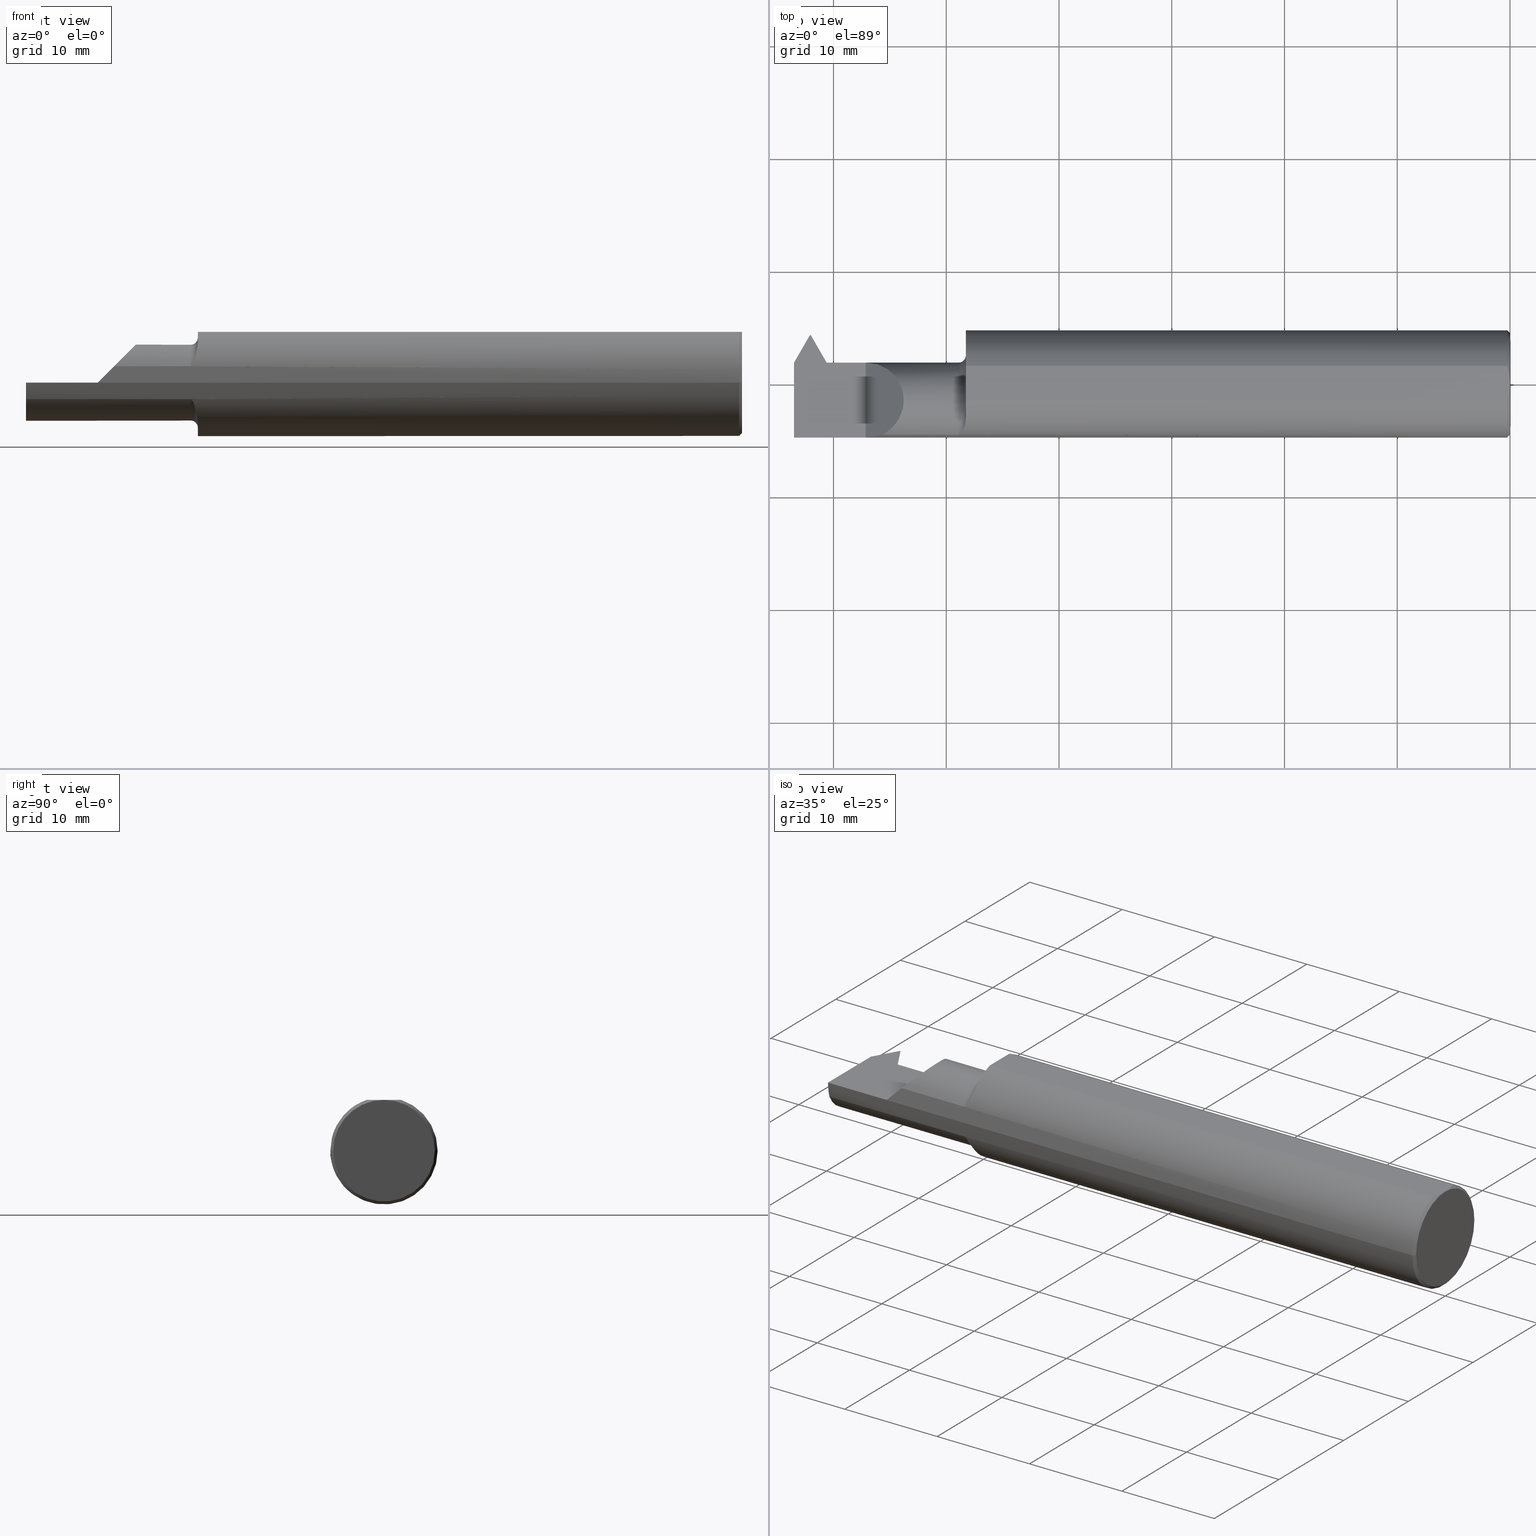
[diagram: canonical four-view strip — front | top / right | iso, engineering-drawing reading convention]
A machine part, canonical four-view strip (front | top / right | iso — engineering-drawing reading convention). The complete STEP part file that produces these views, byte-faithful:
ISO-10303-21;
HEADER;
FILE_DESCRIPTION (( 'STEP AP203' ),
    '1' );
FILE_NAME ('231900-LHTT360500.STEP',
    '2025-01-28T18:32:34',
    ( '' ),
    ( '' ),
    'SwSTEP 2.0',
    'SolidWorks 2024',
    '' );
FILE_SCHEMA (( 'CONFIG_CONTROL_DESIGN' ));
ENDSEC;

DATA;
#1 = ORIENTED_EDGE ( 'NONE', *, *, #500, .T. ) ;
#2 = CALENDAR_DATE ( 2025, 28, 1 ) ;
#3 = DIRECTION ( 'NONE',  ( 1.000000000000000000, 1.224646799147352961E-16, -0.000000000000000000 ) ) ;
#4 = DIRECTION ( 'NONE',  ( 1.000000000000000000, 1.224646799147352961E-16, -0.000000000000000000 ) ) ;
#5 = ORIENTED_EDGE ( 'NONE', *, *, #599, .F. ) ;
#6 = ADVANCED_BREP_SHAPE_REPRESENTATION ( '231900-LHTT360500', ( #769, #601 ), #550 ) ;
#7 = DIRECTION ( 'NONE',  ( 1.000000000000000000, -9.108622265535208572E-17, 0.000000000000000000 ) ) ;
#8 = EDGE_CURVE ( 'NONE', #310, #529, #578, .T. ) ;
#9 = ORIENTED_EDGE ( 'NONE', *, *, #299, .T. ) ;
#10 = AXIS2_PLACEMENT_3D ( 'NONE', #603, #798, #118 ) ;
#11 = LOCAL_TIME ( 10, 32, 34.00000000000000000, #620 ) ;
#12 = COORDINATED_UNIVERSAL_TIME_OFFSET ( 8, 0, .BEHIND. ) ;
#13 = CARTESIAN_POINT ( 'NONE',  ( -0.009999999999999073866, -0.06039039658753610901, 0.1773500000000000909 ) ) ;
#14 = LINE ( 'NONE', #284, #698 ) ;
#15 = CIRCLE ( 'NONE', #576, 0.1580000000000002791 ) ;
#16 = ORIENTED_EDGE ( 'NONE', *, *, #515, .F. ) ;
#17 = CARTESIAN_POINT ( 'NONE',  ( -1.925000000000000044, -0.05835000000000008930, 0.000000000000000000 ) ) ;
#18 = DIRECTION ( 'NONE',  ( 0.000000000000000000, -0.1993679344171976064, -0.9799247046208294787 ) ) ;
#19 = ORIENTED_EDGE ( 'NONE', *, *, #299, .F. ) ;
#20 = DIRECTION ( 'NONE',  ( 0.000000000000000000, 1.000000000000000000, 0.000000000000000000 ) ) ;
#21 = CARTESIAN_POINT ( 'NONE',  ( -4.969808731120575398E-33, 3.199103279729614531E-16, 0.1773500000000000909 ) ) ;
#22 = UNCERTAINTY_MEASURE_WITH_UNIT (LENGTH_MEASURE( 1.000000000000000082E-05 ), #866, 'distance_accuracy_value', 'NONE');
#23 = EDGE_LOOP ( 'NONE', ( #348, #344, #111 ) ) ;
#24 = ADVANCED_FACE ( 'NONE', ( #115 ), #790, .F. ) ;
#25 = CARTESIAN_POINT ( 'NONE',  ( -0.004318418993202907154, -0.04060972747957771606, 0.1773500000000000909 ) ) ;
#26 = CARTESIAN_POINT ( 'NONE',  ( -2.192691453216396358, -0.1783697086546690014, 0.05730854678360306625 ) ) ;
#27 = ORIENTED_EDGE ( 'NONE', *, *, #554, .T. ) ;
#28 = ADVANCED_FACE ( 'NONE', ( #514 ), #511, .F. ) ;
#29 = CARTESIAN_POINT ( 'NONE',  ( -2.300000000000000266, 0.1706499999999998851, 8.875653457662611807E-19 ) ) ;
#30 = CARTESIAN_POINT ( 'NONE',  ( -2.250000000000000000, 0.07465000000000011904, 0.000000000000000000 ) ) ;
#31 = VERTEX_POINT ( 'NONE', #182 ) ;
#32 = LOCAL_TIME ( 10, 32, 34.00000000000000000, #607 ) ;
#33 = CARTESIAN_POINT ( 'NONE',  ( -1.922655856876659186, -0.1781552959227971356, 0.05797775639605650538 ) ) ;
#34 = CIRCLE ( 'NONE', #518, 0.1773500000000004795 ) ;
#35 = EDGE_CURVE ( 'NONE', #169, #126, #444, .T. ) ;
#36 = ORIENTED_EDGE ( 'NONE', *, *, #485, .F. ) ;
#37 = DIRECTION ( 'NONE',  ( -2.498191301712524670E-33, 1.608104540654733016E-16, -1.000000000000000000 ) ) ;
#38 = CIRCLE ( 'NONE', #387, 0.1873499999999999055 ) ;
#39 = AXIS2_PLACEMENT_3D ( 'NONE', #823, #233, #18 ) ;
#40 = CARTESIAN_POINT ( 'NONE',  ( -2.381074374157795326, -0.05835000000000018644, -0.1330000000000000349 ) ) ;
#41 = ORIENTED_EDGE ( 'NONE', *, *, #8, .T. ) ;
#42 = ORIENTED_EDGE ( 'NONE', *, *, #96, .T. ) ;
#43 = VECTOR ( 'NONE', #7, 39.37007874015748143 ) ;
#44 = FACE_OUTER_BOUND ( 'NONE', #870, .T. ) ;
#45 = VERTEX_POINT ( 'NONE', #386 ) ;
#46 = VERTEX_POINT ( 'NONE', #859 ) ;
#47 = CARTESIAN_POINT ( 'NONE',  ( 1.147187889101284552E-17, 1.404899976408496659E-33, 0.000000000000000000 ) ) ;
#48 = CARTESIAN_POINT ( 'NONE',  ( 2.171911098287777663E-17, -0.1773500000000000909, 0.000000000000000000 ) ) ;
#49 = ORIENTED_EDGE ( 'NONE', *, *, #510, .T. ) ;
#50 = DIRECTION ( 'NONE',  ( 0.000000000000000000, 1.000000000000000000, 1.608104540654733016E-16 ) ) ;
#51 = ADVANCED_FACE ( 'NONE', ( #436 ), #712, .T. ) ;
#52 = CARTESIAN_POINT ( 'NONE',  ( -1.900459820461650740, -0.1306920593655933049, 0.1345866223284674645 ) ) ;
#53 = ORIENTED_EDGE ( 'NONE', *, *, #565, .T. ) ;
#54 = EDGE_LOOP ( 'NONE', ( #188, #432, #19, #5 ) ) ;
#55 = LINE ( 'NONE', #861, #372 ) ;
#56 = CLOSED_SHELL ( 'NONE', ( #717, #495, #351, #255, #755, #401, #543, #24, #341, #61, #728, #28, #286, #781, #834, #311, #183, #364, #124, #215, #316, #858, #221, #51, #327, #808 ) ) ;
#57 = FACE_OUTER_BOUND ( 'NONE', #498, .T. ) ;
#58 = LINE ( 'NONE', #280, #392 ) ;
#59 = CARTESIAN_POINT ( 'NONE',  ( -2.500000000000000000, -0.1783697086546693900, -0.05730854678360196297 ) ) ;
#60 = CARTESIAN_POINT ( 'NONE',  ( -1.925000000000000044, -0.1783697086546690569, -0.05730854678360337157 ) ) ;
#61 = ADVANCED_FACE ( 'NONE', ( #642 ), #614, .F. ) ;
#62 = ORIENTED_EDGE ( 'NONE', *, *, #141, .F. ) ;
#63 = CARTESIAN_POINT ( 'NONE',  ( -2.500000000000000000, -0.1873499999999998500, 0.000000000000000000 ) ) ;
#64 = CARTESIAN_POINT ( 'NONE',  ( -0.009999999999999073866, 3.661693929450587103E-16, 0.000000000000000000 ) ) ;
#65 = ORIENTED_EDGE ( 'NONE', *, *, #766, .T. ) ;
#66 = CC_DESIGN_PERSON_AND_ORGANIZATION_ASSIGNMENT ( #131, #67, ( #330 ) ) ;
#67 = PERSON_AND_ORGANIZATION_ROLE ( 'design_supplier' ) ;
#68 = CARTESIAN_POINT ( 'NONE',  ( -2.444421640306047916, 0.1694994269776339546, -0.003161173398384092836 ) ) ;
#69 = DIRECTION ( 'NONE',  ( 0.5000000000000016653, -0.8660254037844377084, -1.047273307763960227E-14 ) ) ;
#70 = ORIENTED_EDGE ( 'NONE', *, *, #740, .F. ) ;
#71 = DIRECTION ( 'NONE',  ( 1.000000000000000000, 0.000000000000000000, 0.000000000000000000 ) ) ;
#72 = LINE ( 'NONE', #869, #108 ) ;
#73 = ORIENTED_EDGE ( 'NONE', *, *, #460, .T. ) ;
#74 = MECHANICAL_CONTEXT ( 'NONE', #83, 'mechanical' ) ;
#75 = VECTOR ( 'NONE', #127, 39.37007874015748143 ) ;
#76 = EDGE_CURVE ( 'NONE', #693, #583, #193, .T. ) ;
#77 = DIRECTION ( 'NONE',  ( -0.4999999999999955591, 0.000000000000000000, 0.8660254037844411501 ) ) ;
#78 = ORIENTED_EDGE ( 'NONE', *, *, #235, .F. ) ;
#79 = DIRECTION ( 'NONE',  ( -0.7071067811865514585, 0.000000000000000000, -0.7071067811865435759 ) ) ;
#80 = CARTESIAN_POINT ( 'NONE',  ( -2.381074374157795326, 0.06945148828669117647, -0.1330000000000000071 ) ) ;
#81 = AXIS2_PLACEMENT_3D ( 'NONE', #217, #756, #79 ) ;
#82 = ORIENTED_EDGE ( 'NONE', *, *, #830, .F. ) ;
#83 = APPLICATION_CONTEXT ( 'configuration controlled 3d designs of mechanical parts and assemblies' ) ;
#84 = FACE_OUTER_BOUND ( 'NONE', #421, .T. ) ;
#85 = DIRECTION ( 'NONE',  ( 1.000000000000000000, -9.108622265535208572E-17, 0.000000000000000000 ) ) ;
#86 = EDGE_LOOP ( 'NONE', ( #103, #491, #594, #412, #406, #571, #49 ) ) ;
#87 = B_SPLINE_CURVE_WITH_KNOTS ( 'NONE', 3,
 ( #60, #259, #332, #206, #812, #604, #265, #338, #598, #735, #809, #661, #520, #274 ),
 .UNSPECIFIED., .F., .F.,
 ( 4, 2, 2, 2, 2, 2, 4 ),
 ( 1.965724206509027427E-07, 9.384097494424281942E-05, 0.0001874853774678347513, 0.0003747741825150180460, 0.0007493517926093751485, 0.001498507012798095100, 0.002996817453175537171 ),
 .UNSPECIFIED. ) ;
#88 = DIRECTION ( 'NONE',  ( 0.000000000000000000, -0.1993679344171976064, -0.9799247046208294787 ) ) ;
#89 = VERTEX_POINT ( 'NONE', #864 ) ;
#90 = EDGE_CURVE ( 'NONE', #378, #579, #840, .T. ) ;
#91 = VECTOR ( 'NONE', #231, 39.37007874015748854 ) ;
#92 = DIRECTION ( 'NONE',  ( -1.000000000000000000, -1.224646799147319927E-16, 0.000000000000000000 ) ) ;
#93 = CARTESIAN_POINT ( 'NONE',  ( -2.030319072763994814, -0.1008380660117472460, 0.2196809272360031040 ) ) ;
#94 = ORIENTED_EDGE ( 'NONE', *, *, #389, .T. ) ;
#95 = AXIS2_PLACEMENT_3D ( 'NONE', #546, #822, #622 ) ;
#96 = EDGE_CURVE ( 'NONE', #558, #579, #391, .T. ) ;
#97 = CARTESIAN_POINT ( 'NONE',  ( -2.290050427009581391, -0.01637394714821325398, -0.4473969938213963049 ) ) ;
#98 = VERTEX_POINT ( 'NONE', #533 ) ;
#99 = AXIS2_PLACEMENT_3D ( 'NONE', #452, #180, #104 ) ;
#100 = SHAPE_DEFINITION_REPRESENTATION ( #170, #6 ) ;
#101 = EDGE_CURVE ( 'NONE', #703, #378, #72, .T. ) ;
#102 = DIRECTION ( 'NONE',  ( -0.7071067811865341390, -0.7071067811865608954, 0.000000000000000000 ) ) ;
#103 = ORIENTED_EDGE ( 'NONE', *, *, #572, .F. ) ;
#104 = DIRECTION ( 'NONE',  ( 0.1993679344171976064, 0.000000000000000000, -0.9799247046208294787 ) ) ;
#105 = CARTESIAN_POINT ( 'NONE',  ( -1.899999999999978817, -0.1236042208122531821, 0.1411207813207416562 ) ) ;
#106 = CARTESIAN_POINT ( 'NONE',  ( -2.381947536149771061, 1.001585846846491101, 0.8871084618176598990 ) ) ;
#107 = VERTEX_POINT ( 'NONE', #125 ) ;
#108 = VECTOR ( 'NONE', #739, 39.37007874015748143 ) ;
#109 = DIRECTION ( 'NONE',  ( -0.000000000000000000, 1.000000000000000000, -0.000000000000000000 ) ) ;
#110 = CARTESIAN_POINT ( 'NONE',  ( -1.920882408083194992, -0.1776276410483740853, 0.05957475000073310378 ) ) ;
#111 = ORIENTED_EDGE ( 'NONE', *, *, #531, .T. ) ;
#112 = EDGE_CURVE ( 'NONE', #402, #271, #309, .T. ) ;
#113 = PLANE ( 'NONE',  #708 ) ;
#114 = DIRECTION ( 'NONE',  ( -1.253099476677463101E-16, 1.000000000000000000, 8.881784197001252323E-16 ) ) ;
#115 = FACE_OUTER_BOUND ( 'NONE', #805, .T. ) ;
#116 = DIRECTION ( 'NONE',  ( 1.000000000000000000, -9.108622265535208572E-17, 0.000000000000000000 ) ) ;
#117 = VECTOR ( 'NONE', #513, 39.37007874015747433 ) ;
#118 = DIRECTION ( 'NONE',  ( -1.253099476677463101E-16, 1.000000000000000000, 0.000000000000000000 ) ) ;
#119 = DIRECTION ( 'NONE',  ( -1.253099476677463101E-16, 1.000000000000000000, 0.000000000000000000 ) ) ;
#120 = ORIENTED_EDGE ( 'NONE', *, *, #158, .F. ) ;
#121 = LINE ( 'NONE', #315, #643 ) ;
#122 = AXIS2_PLACEMENT_3D ( 'NONE', #156, #230, #20 ) ;
#123 = LINE ( 'NONE', #63, #522 ) ;
#124 = ADVANCED_FACE ( 'NONE', ( #804 ), #347, .T. ) ;
#125 = CARTESIAN_POINT ( 'NONE',  ( -2.391947536149770848, -0.01852261497118611391, -0.1329999999999999793 ) ) ;
#126 = VERTEX_POINT ( 'NONE', #270 ) ;
#127 = DIRECTION ( 'NONE',  ( 0.1143501000964208258, 0.1980601832175902244, 0.9734969021171835379 ) ) ;
#128 = EDGE_CURVE ( 'NONE', #583, #187, #87, .T. ) ;
#129 = CARTESIAN_POINT ( 'NONE',  ( -2.370501519666968981, 0.06407714550917330276, -0.05196724008907774306 ) ) ;
#130 = ORIENTED_EDGE ( 'NONE', *, *, #685, .T. ) ;
#131 = PERSON_AND_ORGANIZATION ( #588, #143 ) ;
#132 = CARTESIAN_POINT ( 'NONE',  ( 6.090379736357987074E-18, 0.06447738502883534895, -0.04999999999997994937 ) ) ;
#133 = DIRECTION ( 'NONE',  ( -1.000000000000000000, 9.108622265535208572E-17, -0.000000000000000000 ) ) ;
#134 = ORIENTED_EDGE ( 'NONE', *, *, #476, .F. ) ;
#135 = PERSON_AND_ORGANIZATION ( #588, #143 ) ;
#136 = DIRECTION ( 'NONE',  ( 1.000000000000000000, 1.224646799147352961E-16, -0.000000000000000000 ) ) ;
#137 = FACE_OUTER_BOUND ( 'NONE', #174, .T. ) ;
#138 = PLANE ( 'NONE',  #874 ) ;
#139 = ORIENTED_EDGE ( 'NONE', *, *, #830, .T. ) ;
#140 = PERSON_AND_ORGANIZATION ( #588, #143 ) ;
#141 = EDGE_CURVE ( 'NONE', #144, #163, #407, .T. ) ;
#142 = CARTESIAN_POINT ( 'NONE',  ( -1.024723209186555973E-17, 0.1773500000000008403, 2.233143438245201271E-17 ) ) ;
#143 = ORGANIZATION ( 'UNSPECIFIED', 'UNSPECIFIED', '' ) ;
#144 = VERTEX_POINT ( 'NONE', #199 ) ;
#145 =( NAMED_UNIT ( * ) SI_UNIT ( $, .STERADIAN. ) SOLID_ANGLE_UNIT ( ) );
#146 = AXIS2_PLACEMENT_3D ( 'NONE', #459, #3, #802 ) ;
#147 = FACE_OUTER_BOUND ( 'NONE', #828, .T. ) ;
#148 = DIRECTION ( 'NONE',  ( 1.000000000000000000, 1.224646799147352961E-16, -0.000000000000000000 ) ) ;
#149 = ORIENTED_EDGE ( 'NONE', *, *, #821, .F. ) ;
#150 = VECTOR ( 'NONE', #733, 39.37007874015748143 ) ;
#151 = PLANE ( 'NONE',  #212 ) ;
#152 = EDGE_CURVE ( 'NONE', #848, #645, #472, .T. ) ;
#153 = DIRECTION ( 'NONE',  ( 1.000000000000000000, 1.224646799147352961E-16, -0.000000000000000000 ) ) ;
#154 = AXIS2_PLACEMENT_3D ( 'NONE', #161, #92, #366 ) ;
#155 = ORIENTED_EDGE ( 'NONE', *, *, #591, .F. ) ;
#156 = CARTESIAN_POINT ( 'NONE',  ( -2.500000000000000000, 6.123233995736767268E-17, 0.000000000000000000 ) ) ;
#157 = CYLINDRICAL_SURFACE ( 'NONE', #852, 0.1873499999999999055 ) ;
#158 = EDGE_CURVE ( 'NONE', #194, #736, #674, .T. ) ;
#159 = ORIENTED_EDGE ( 'NONE', *, *, #261, .T. ) ;
#160 = CIRCLE ( 'NONE', #277, 0.1330000000000000071 ) ;
#161 = CARTESIAN_POINT ( 'NONE',  ( 0.000000000000000000, 3.673940397442058882E-16, 0.000000000000000000 ) ) ;
#162 = LINE ( 'NONE', #227, #556 ) ;
#163 = VERTEX_POINT ( 'NONE', #527 ) ;
#164 = EDGE_CURVE ( 'NONE', #779, #848, #58, .T. ) ;
#165 = DIRECTION ( 'NONE',  ( -0.7071067811865343611, 0.7071067811865606734, 8.659560562355095561E-17 ) ) ;
#166 = ORIENTED_EDGE ( 'NONE', *, *, #701, .T. ) ;
#167 = AXIS2_PLACEMENT_3D ( 'NONE', #786, #179, #383 ) ;
#168 = CARTESIAN_POINT ( 'NONE',  ( -1.907268617577931424, 1.101162049775513907, 0.000000000000000000 ) ) ;
#169 = VERTEX_POINT ( 'NONE', #129 ) ;
#170 = PRODUCT_DEFINITION_SHAPE ( 'NONE', 'NONE',  #369 ) ;
#171 = LOCAL_TIME ( 10, 32, 34.00000000000000000, #680 ) ;
#172 = FACE_OUTER_BOUND ( 'NONE', #224, .T. ) ;
#173 = CARTESIAN_POINT ( 'NONE',  ( -0.009999999999999073866, -0.06039039658753610901, 0.1773500000000000909 ) ) ;
#174 = EDGE_LOOP ( 'NONE', ( #853, #285, #457, #149, #82 ) ) ;
#175 = ORIENTED_EDGE ( 'NONE', *, *, #677, .T. ) ;
#176 = CARTESIAN_POINT ( 'NONE',  ( -2.442739408347421648, 0.1524514882866900289, -0.05000000000000017625 ) ) ;
#177 = DIRECTION ( 'NONE',  ( 0.000000000000000000, -0.7071067811865430208, -0.7071067811865521247 ) ) ;
#178 = EDGE_CURVE ( 'NONE', #679, #187, #15, .T. ) ;
#179 = DIRECTION ( 'NONE',  ( 0.000000000000000000, 0.000000000000000000, -1.000000000000000000 ) ) ;
#180 = DIRECTION ( 'NONE',  ( 0.9799247046208295897, -8.925763983057300384E-17, 0.1993679344171976342 ) ) ;
#181 = PLANE ( 'NONE',  #414 ) ;
#182 = CARTESIAN_POINT ( 'NONE',  ( -2.381947536149771061, -0.01852261497118613473, -0.1329999999999999238 ) ) ;
#183 = ADVANCED_FACE ( 'NONE', ( #137 ), #875, .T. ) ;
#184 = ORIENTED_EDGE ( 'NONE', *, *, #190, .T. ) ;
#185 = CARTESIAN_POINT ( 'NONE',  ( -2.443000000000000060, 1.090011308086659580, 0.8871084618176598990 ) ) ;
#186 = CARTESIAN_POINT ( 'NONE',  ( -0.006852151730285416242, 0.05062478141268286075, 0.1773500000000000909 ) ) ;
#187 = VERTEX_POINT ( 'NONE', #419 ) ;
#188 = ORIENTED_EDGE ( 'NONE', *, *, #178, .T. ) ;
#189 = FACE_OUTER_BOUND ( 'NONE', #232, .T. ) ;
#190 = EDGE_CURVE ( 'NONE', #427, #402, #496, .T. ) ;
#191 = VECTOR ( 'NONE', #201, 39.37007874015748143 ) ;
#192 = CARTESIAN_POINT ( 'NONE',  ( -2.500000000000000000, 0.1873499999999999888, 0.000000000000000000 ) ) ;
#193 = LINE ( 'NONE', #537, #43 ) ;
#194 = VERTEX_POINT ( 'NONE', #292 ) ;
#195 = LENGTH_MEASURE_WITH_UNIT ( LENGTH_MEASURE( 0.02539999999999999897 ), #442 );
#196 = AXIS2_PLACEMENT_3D ( 'NONE', #64, #541, #119 ) ;
#197 = APPROVAL ( #801, 'UNSPECIFIED' ) ;
#198 = CARTESIAN_POINT ( 'NONE',  ( -2.381074374157795326, 0.07464999999999998026, 0.000000000000000000 ) ) ;
#199 = CARTESIAN_POINT ( 'NONE',  ( -2.443260591652578029, 0.1524514882866898902, -0.05000000000000043299 ) ) ;
#200 = ORIENTED_EDGE ( 'NONE', *, *, #839, .T. ) ;
#201 = DIRECTION ( 'NONE',  ( 9.108622265535208572E-17, 1.000000000000000000, 1.608104540654733016E-16 ) ) ;
#202 = DIRECTION ( 'NONE',  ( 1.218297997402302004E-14, 0.7071067811865430208, 0.7071067811865520136 ) ) ;
#203 = ORIENTED_EDGE ( 'NONE', *, *, #531, .F. ) ;
#204 = DATE_AND_TIME ( #806, #621 ) ;
#205 = CARTESIAN_POINT ( 'NONE',  ( -2.381074374157796214, 0.04759084417664793260, -0.1330000000000000071 ) ) ;
#206 = CARTESIAN_POINT ( 'NONE',  ( -1.920855552425395851, -0.1776175334603393441, -0.05960499283471037274 ) ) ;
#207 = CARTESIAN_POINT ( 'NONE',  ( -2.391947536149770848, 1.001585846846491101, 0.8871084618176598990 ) ) ;
#208 = EDGE_CURVE ( 'NONE', #579, #427, #697, .T. ) ;
#209 = ORIENTED_EDGE ( 'NONE', *, *, #839, .F. ) ;
#210 = CIRCLE ( 'NONE', #471, 0.1873499999999999055 ) ;
#211 = DATE_AND_TIME ( #671, #171 ) ;
#212 = AXIS2_PLACEMENT_3D ( 'NONE', #411, #681, #478 ) ;
#213 = PLANE ( 'NONE',  #323 ) ;
#214 = ORIENTED_EDGE ( 'NONE', *, *, #208, .T. ) ;
#215 = ADVANCED_FACE ( 'NONE', ( #695 ), #151, .T. ) ;
#216 = DATE_AND_TIME ( #816, #11 ) ;
#217 = CARTESIAN_POINT ( 'NONE',  ( -2.250000000000000000, -0.2500000000000000000, 0.000000000000000000 ) ) ;
#218 = FACE_OUTER_BOUND ( 'NONE', #86, .T. ) ;
#219 = ORIENTED_EDGE ( 'NONE', *, *, #572, .T. ) ;
#220 = VECTOR ( 'NONE', #807, 39.37007874015748143 ) ;
#221 = ADVANCED_FACE ( 'NONE', ( #283 ), #213, .T. ) ;
#222 = DIRECTION ( 'NONE',  ( 0.000000000000000000, -1.000000000000000000, 0.000000000000000000 ) ) ;
#223 = DIRECTION ( 'NONE',  ( 0.000000000000000000, 0.7071067811865535679, 0.7071067811865415775 ) ) ;
#224 = EDGE_LOOP ( 'NONE', ( #184, #494, #503 ) ) ;
#225 = CC_DESIGN_PERSON_AND_ORGANIZATION_ASSIGNMENT ( #345, #530, ( #330 ) ) ;
#226 = LINE ( 'NONE', #298, #528 ) ;
#227 = CARTESIAN_POINT ( 'NONE',  ( -2.171911098287777663E-17, 0.1773500000000008403, 2.171911098287836519E-17 ) ) ;
#228 = AXIS2_PLACEMENT_3D ( 'NONE', #17, #762, #287 ) ;
#229 = ORIENTED_EDGE ( 'NONE', *, *, #872, .T. ) ;
#230 = DIRECTION ( 'NONE',  ( 1.000000000000000000, 1.224646799147352961E-16, -0.000000000000000000 ) ) ;
#231 = DIRECTION ( 'NONE',  ( -6.842104469694077398E-17, 0.3768974211598647428, 0.9262550048032363037 ) ) ;
#232 = EDGE_LOOP ( 'NONE', ( #234, #73 ) ) ;
#233 = DIRECTION ( 'NONE',  ( 6.692513345651035612E-15, -0.9799247046208295897, 0.1993679344171976342 ) ) ;
#234 = ORIENTED_EDGE ( 'NONE', *, *, #704, .T. ) ;
#235 = EDGE_CURVE ( 'NONE', #645, #107, #748, .T. ) ;
#236 = CC_DESIGN_SECURITY_CLASSIFICATION ( #694, ( #330 ) ) ;
#237 = DIRECTION ( 'NONE',  ( 1.000000000000000000, -9.108622265535208572E-17, 0.000000000000000000 ) ) ;
#238 = ORIENTED_EDGE ( 'NONE', *, *, #101, .F. ) ;
#239 = CIRCLE ( 'NONE', #228, 0.1330000000000003124 ) ;
#240 = CARTESIAN_POINT ( 'NONE',  ( -2.500000000000000000, 0.1706500000000001072, 0.000000000000000000 ) ) ;
#241 = CARTESIAN_POINT ( 'NONE',  ( -2.211249739839921791, -0.1843323154515824902, 0.03875026016007789009 ) ) ;
#242 = CARTESIAN_POINT ( 'NONE',  ( -2.500000000000001332, 0.06407714550917290031, -0.05196724008907763898 ) ) ;
#243 = EDGE_LOOP ( 'NONE', ( #548, #78, #648, #65 ) ) ;
#244 = CARTESIAN_POINT ( 'NONE',  ( -2.500000000000000000, -0.05835000000000015175, -0.1330000000000000349 ) ) ;
#245 = EDGE_CURVE ( 'NONE', #851, #655, #826, .T. ) ;
#246 = CARTESIAN_POINT ( 'NONE',  ( -1.918195961774018965, -0.1762973784583063419, 0.06343092843766089117 ) ) ;
#247 = DIRECTION ( 'NONE',  ( 0.5000000000000034417, -0.8660254037844365982, 0.000000000000000000 ) ) ;
#248 = EDGE_CURVE ( 'NONE', #126, #290, #625, .T. ) ;
#249 = CARTESIAN_POINT ( 'NONE',  ( -0.009999999999999073866, 0.06039039658753679596, 0.1773500000000000909 ) ) ;
#250 = ORIENTED_EDGE ( 'NONE', *, *, #815, .F. ) ;
#251 = VECTOR ( 'NONE', #707, 39.37007874015748143 ) ;
#252 = ORIENTED_EDGE ( 'NONE', *, *, #8, .F. ) ;
#253 = CARTESIAN_POINT ( 'NONE',  ( -2.500000000000000000, -0.05835000000000006154, 0.000000000000000000 ) ) ;
#254 = DIRECTION ( 'NONE',  ( -1.000000000000000000, 0.000000000000000000, -0.000000000000000000 ) ) ;
#255 = ADVANCED_FACE ( 'NONE', ( #295 ), #560, .T. ) ;
#256 = DIRECTION ( 'NONE',  ( -1.000000000000000000, -1.553500558300393113E-17, -0.000000000000000000 ) ) ;
#257 = CC_DESIGN_APPROVAL ( #380, ( #369 ) ) ;
#258 = LINE ( 'NONE', #132, #305 ) ;
#259 = CARTESIAN_POINT ( 'NONE',  ( -1.923749915749442874, -0.1783697086546684740, -0.05730854678360473159 ) ) ;
#260 = EDGE_LOOP ( 'NONE', ( #745, #534, #130, #358, #582, #334, #424, #462 ) ) ;
#261 = EDGE_CURVE ( 'NONE', #656, #848, #226, .T. ) ;
#262 = DATE_AND_TIME ( #2, #32 ) ;
#263 = VECTOR ( 'NONE', #440, 39.37007874015748143 ) ;
#264 = CARTESIAN_POINT ( 'NONE',  ( 0.000000000000000000, 3.673940397442058882E-16, 0.000000000000000000 ) ) ;
#265 = CARTESIAN_POINT ( 'NONE',  ( -1.917141984682263933, -0.1755174329696179703, -0.06556455082929076028 ) ) ;
#266 = ORIENTED_EDGE ( 'NONE', *, *, #208, .F. ) ;
#267 = PERSON_AND_ORGANIZATION ( #588, #143 ) ;
#268 = AXIS2_PLACEMENT_3D ( 'NONE', #29, #474, #467 ) ;
#269 = DIRECTION ( 'NONE',  ( 0.5000000000000034417, -0.8660254037844365982, 0.000000000000000000 ) ) ;
#270 = CARTESIAN_POINT ( 'NONE',  ( -2.381074374157795326, 0.06407714550917456564, -0.05196724008907338543 ) ) ;
#271 = VERTEX_POINT ( 'NONE', #142 ) ;
#272 = CALENDAR_DATE ( 2025, 28, 1 ) ;
#273 = LINE ( 'NONE', #192, #220 ) ;
#274 = CARTESIAN_POINT ( 'NONE',  ( -1.900000000000000133, -0.1160303770351314295, -0.1470951192429074961 ) ) ;
#275 = ORIENTED_EDGE ( 'NONE', *, *, #791, .F. ) ;
#276 = PERSON_AND_ORGANIZATION_ROLE ( 'design_owner' ) ;
#277 = AXIS2_PLACEMENT_3D ( 'NONE', #253, #306, #780 ) ;
#278 = VECTOR ( 'NONE', #647, 39.37007874015748143 ) ;
#279 = APPROVAL ( #409, 'UNSPECIFIED' ) ;
#280 = CARTESIAN_POINT ( 'NONE',  ( -2.442739408347421648, 0.1524514882866913335, -0.04999999999999877459 ) ) ;
#281 = ORIENTED_EDGE ( 'NONE', *, *, #389, .F. ) ;
#282 = AXIS2_PLACEMENT_3D ( 'NONE', #106, #254, #371 ) ;
#283 = FACE_OUTER_BOUND ( 'NONE', #611, .T. ) ;
#284 = CARTESIAN_POINT ( 'NONE',  ( -2.500000000000000000, 0.06039039658753648371, 0.1773500000000000909 ) ) ;
#285 = ORIENTED_EDGE ( 'NONE', *, *, #394, .F. ) ;
#286 = ADVANCED_FACE ( 'NONE', ( #147 ), #684, .F. ) ;
#287 = DIRECTION ( 'NONE',  ( 0.000000000000000000, -1.000000000000000000, 0.000000000000000000 ) ) ;
#288 = DIRECTION ( 'NONE',  ( -9.108622265535208572E-17, -1.000000000000000000, 0.000000000000000000 ) ) ;
#289 = AXIS2_PLACEMENT_3D ( 'NONE', #47, #657, #784 ) ;
#290 = VERTEX_POINT ( 'NONE', #488 ) ;
#291 = EDGE_CURVE ( 'NONE', #754, #31, #355, .T. ) ;
#292 = CARTESIAN_POINT ( 'NONE',  ( -2.386074374157794775, 0.07464999999999998026, 0.000000000000000000 ) ) ;
#293 = DIRECTION ( 'NONE',  ( -0.1955200734030768384, 0.1955200734030755338, 0.9610118635026893008 ) ) ;
#294 = ORIENTED_EDGE ( 'NONE', *, *, #704, .F. ) ;
#295 = FACE_OUTER_BOUND ( 'NONE', #314, .T. ) ;
#296 = LINE ( 'NONE', #831, #91 ) ;
#297 = ORIENTED_EDGE ( 'NONE', *, *, #640, .T. ) ;
#298 = CARTESIAN_POINT ( 'NONE',  ( -2.441423267150904852, 0.1717766856931814967, 0.003095543500839076888 ) ) ;
#299 = EDGE_CURVE ( 'NONE', #487, #583, #239, .T. ) ;
#300 = DIRECTION ( 'NONE',  ( -1.000000000000000000, -1.224646799147319927E-16, 0.000000000000000000 ) ) ;
#301 = EDGE_LOOP ( 'NONE', ( #778, #42, #214, #27, #1 ) ) ;
#302 = VECTOR ( 'NONE', #336, 39.37007874015748854 ) ;
#303 = LINE ( 'NONE', #48, #569 ) ;
#304 = ORIENTED_EDGE ( 'NONE', *, *, #791, .T. ) ;
#305 = VECTOR ( 'NONE', #470, 39.37007874015748143 ) ;
#306 = DIRECTION ( 'NONE',  ( 1.000000000000000000, 1.553500558300393113E-17, -0.000000000000000000 ) ) ;
#307 = CARTESIAN_POINT ( 'NONE',  ( 5.242517010058283000E-16, 0.01028390533945651962, 0.1773500000000001187 ) ) ;
#308 = ORIENTED_EDGE ( 'NONE', *, *, #524, .F. ) ;
#309 = CIRCLE ( 'NONE', #379, 0.1773500000000004795 ) ;
#310 = VERTEX_POINT ( 'NONE', #759 ) ;
#311 = ADVANCED_FACE ( 'NONE', ( #688 ), #418, .T. ) ;
#312 = CARTESIAN_POINT ( 'NONE',  ( -0.009999999999999073866, 0.06039039658753679596, 0.1773500000000000909 ) ) ;
#313 = DIRECTION ( 'NONE',  ( -1.000000000000000000, -1.224646799147319927E-16, 0.000000000000000000 ) ) ;
#314 = EDGE_LOOP ( 'NONE', ( #238, #770, #430, #675, #666, #139, #687, #297 ) ) ;
#315 = CARTESIAN_POINT ( 'NONE',  ( -2.381947536149771061, 1.001585846846491101, 0.8871084618176598990 ) ) ;
#316 = ADVANCED_FACE ( 'NONE', ( #84 ), #563, .F. ) ;
#317 = FACE_OUTER_BOUND ( 'NONE', #670, .T. ) ;
#318 = ORIENTED_EDGE ( 'NONE', *, *, #291, .F. ) ;
#319 = DIRECTION ( 'NONE',  ( 0.000000000000000000, -0.7071067811865535679, -0.7071067811865414665 ) ) ;
#320 = CONICAL_SURFACE ( 'NONE', #811, 0.1773500000000004795, 0.7853981633974670418 ) ;
#321 = CARTESIAN_POINT ( 'NONE',  ( -1.925000000000000044, -0.1783697086546690846, 0.05730854678360332299 ) ) ;
#322 = ORIENTED_EDGE ( 'NONE', *, *, #248, .F. ) ;
#323 = AXIS2_PLACEMENT_3D ( 'NONE', #629, #481, #77 ) ;
#324 = ORIENTED_EDGE ( 'NONE', *, *, #766, .F. ) ;
#325 = FACE_OUTER_BOUND ( 'NONE', #301, .T. ) ;
#326 = DIRECTION ( 'NONE',  ( 1.000000000000000000, 1.224646799147352961E-16, -0.000000000000000000 ) ) ;
#327 = ADVANCED_FACE ( 'NONE', ( #538 ), #138, .T. ) ;
#328 = DIRECTION ( 'NONE',  ( -1.000000000000000000, 9.108622265535208572E-17, 0.000000000000000000 ) ) ;
#329 = ORIENTED_EDGE ( 'NONE', *, *, #245, .F. ) ;
#330 = PRODUCT_DEFINITION_FORMATION_WITH_SPECIFIED_SOURCE ( 'ANY', '', #502, .NOT_KNOWN. ) ;
#331 = LINE ( 'NONE', #68, #434 ) ;
#332 = CARTESIAN_POINT ( 'NONE',  ( -1.922632702519553982, -0.1781504652642079689, -0.05799271583144612746 ) ) ;
#333 = VECTOR ( 'NONE', #384, 39.37007874015748854 ) ;
#334 = ORIENTED_EDGE ( 'NONE', *, *, #35, .T. ) ;
#335 = APPLICATION_PROTOCOL_DEFINITION ( 'international standard', 'config_control_design', 1994, #631 ) ;
#336 = DIRECTION ( 'NONE',  ( -0.5000000000000059952, 0.8660254037844350439, 6.216078291558689149E-17 ) ) ;
#337 = AXIS2_PLACEMENT_3D ( 'NONE', #356, #827, #630 ) ;
#338 = CARTESIAN_POINT ( 'NONE',  ( -1.914331470962522097, -0.1730809661842615810, -0.07185561948439798952 ) ) ;
#339 = ORIENTED_EDGE ( 'NONE', *, *, #112, .F. ) ;
#340 = SECURITY_CLASSIFICATION_LEVEL ( 'unclassified' ) ;
#341 = ADVANCED_FACE ( 'NONE', ( #757 ), #760, .F. ) ;
#342 = LINE ( 'NONE', #205, #150 ) ;
#343 = DIRECTION ( 'NONE',  ( 0.000000000000000000, -1.000000000000000000, 0.000000000000000000 ) ) ;
#344 = ORIENTED_EDGE ( 'NONE', *, *, #248, .T. ) ;
#345 = PERSON_AND_ORGANIZATION ( #588, #143 ) ;
#346 = PRODUCT_RELATED_PRODUCT_CATEGORY ( 'detail', '', ( #502 ) ) ;
#347 = CYLINDRICAL_SURFACE ( 'NONE', #771, 0.1330000000000001459 ) ;
#348 = ORIENTED_EDGE ( 'NONE', *, *, #428, .F. ) ;
#349 = APPROVAL_ROLE ( '' ) ;
#350 = DIRECTION ( 'NONE',  ( -0.02328694095508644646, -0.3419273951315134896, -0.9394377972167885504 ) ) ;
#351 = ADVANCED_FACE ( 'NONE', ( #218 ), #157, .T. ) ;
#352 = ORIENTED_EDGE ( 'NONE', *, *, #291, .T. ) ;
#353 = VECTOR ( 'NONE', #4, 39.37007874015748143 ) ;
#354 =( BOUNDED_CURVE ( )  B_SPLINE_CURVE ( 3, ( #30, #634, #93, #26 ),
 .UNSPECIFIED., .F., .F. ) 
 B_SPLINE_CURVE_WITH_KNOTS ( ( 4, 4 ),
 ( 1.570796326794896558, 4.266908708460873001 ),
 .UNSPECIFIED. ) 
 CURVE ( )  GEOMETRIC_REPRESENTATION_ITEM ( )  RATIONAL_B_SPLINE_CURVE ( ( 1.000000000000000000, 0.4806019281062902104, 0.4806019281062902104, 1.000000000000000000 ) ) 
 REPRESENTATION_ITEM ( '' )  );
#355 = LINE ( 'NONE', #626, #484 ) ;
#356 = CARTESIAN_POINT ( 'NONE',  ( -2.381074374157795326, -0.05835000000000018644, -0.1330000000000000349 ) ) ;
#357 = CC_DESIGN_PERSON_AND_ORGANIZATION_ASSIGNMENT ( #267, #523, ( #369 ) ) ;
#358 = ORIENTED_EDGE ( 'NONE', *, *, #158, .T. ) ;
#359 = CARTESIAN_POINT ( 'NONE',  ( 5.171903141325568845E-16, -0.01026980879711894036, 0.1773500000000000909 ) ) ;
#360 = CARTESIAN_POINT ( 'NONE',  ( -2.500000000000000000, 6.123233995736767268E-17, 0.000000000000000000 ) ) ;
#361 = VERTEX_POINT ( 'NONE', #416 ) ;
#362 = LINE ( 'NONE', #97, #672 ) ;
#363 = ORIENTED_EDGE ( 'NONE', *, *, #640, .F. ) ;
#364 = ADVANCED_FACE ( 'NONE', ( #627 ), #573, .F. ) ;
#365 = VECTOR ( 'NONE', #752, 39.37007874015748143 ) ;
#366 = DIRECTION ( 'NONE',  ( 1.224646799147319927E-16, -1.000000000000000000, 0.000000000000000000 ) ) ;
#367 = CARTESIAN_POINT ( 'NONE',  ( 0.000000000000000000, 3.673940397442058882E-16, 0.000000000000000000 ) ) ;
#368 = ORIENTED_EDGE ( 'NONE', *, *, #35, .F. ) ;
#369 = PRODUCT_DEFINITION ( 'UNKNOWN', '', #330, #557 ) ;
#370 = LINE ( 'NONE', #568, #278 ) ;
#371 = DIRECTION ( 'NONE',  ( -0.000000000000000000, 0.000000000000000000, 1.000000000000000000 ) ) ;
#372 = VECTOR ( 'NONE', #256, 39.37007874015748143 ) ;
#373 = LINE ( 'NONE', #399, #191 ) ;
#374 = EDGE_CURVE ( 'NONE', #655, #693, #713, .T. ) ;
#375 = CARTESIAN_POINT ( 'NONE',  ( -1.757231382422083765, -1.014538011669857687, 0.000000000000000000 ) ) ;
#376 = LINE ( 'NONE', #714, #477 ) ;
#377 = CARTESIAN_POINT ( 'NONE',  ( -1.914343418362526306, -0.1730952584121029925, 0.07182162584506007752 ) ) ;
#378 = VERTEX_POINT ( 'NONE', #482 ) ;
#379 = AXIS2_PLACEMENT_3D ( 'NONE', #665, #396, #795 ) ;
#380 = APPROVAL ( #602, 'UNSPECIFIED' ) ;
#381 = ORIENTED_EDGE ( 'NONE', *, *, #554, .F. ) ;
#382 = CARTESIAN_POINT ( 'NONE',  ( -2.500000000000000000, 6.123233995736767268E-17, 0.000000000000000000 ) ) ;
#383 = DIRECTION ( 'NONE',  ( -1.000000000000000000, 0.000000000000000000, -0.000000000000000000 ) ) ;
#384 = DIRECTION ( 'NONE',  ( 0.4999999999999900080, 0.8660254037844443697, -1.714965957473355707E-15 ) ) ;
#385 = CARTESIAN_POINT ( 'NONE',  ( -1.900000000000000133, -0.1160303770344977697, 0.1470951192431559917 ) ) ;
#386 = CARTESIAN_POINT ( 'NONE',  ( -2.444500000000000117, 0.1706500000000001349, 0.000000000000000000 ) ) ;
#387 = AXIS2_PLACEMENT_3D ( 'NONE', #506, #313, #114 ) ;
#388 = PLANE ( 'NONE',  #289 ) ;
#389 = EDGE_CURVE ( 'NONE', #163, #779, #479, .T. ) ;
#390 = CARTESIAN_POINT ( 'NONE',  ( -2.402519807398028728, 0.04616567407543323981, -0.1400049348434579954 ) ) ;
#391 = LINE ( 'NONE', #455, #353 ) ;
#392 = VECTOR ( 'NONE', #202, 39.37007874015748143 ) ;
#393 = CARTESIAN_POINT ( 'NONE',  ( -2.500000000000000000, 0.2123500000000002053, 0.1773500000000001187 ) ) ;
#394 = EDGE_CURVE ( 'NONE', #558, #679, #210, .T. ) ;
#395 = CARTESIAN_POINT ( 'NONE',  ( -2.377429102214748902, 0.07465000000000014679, -0.01791708402103008718 ) ) ;
#396 = DIRECTION ( 'NONE',  ( 1.000000000000000000, 1.224646799147352961E-16, -0.000000000000000000 ) ) ;
#397 = ORIENTED_EDGE ( 'NONE', *, *, #410, .T. ) ;
#398 = LOCAL_TIME ( 10, 32, 34.00000000000000000, #12 ) ;
#399 = CARTESIAN_POINT ( 'NONE',  ( -1.900000000000000133, 0.2123500000000001220, 0.1773500000000001187 ) ) ;
#400 = DIRECTION ( 'NONE',  ( -1.000000000000000000, 9.108622265535208572E-17, -0.000000000000000000 ) ) ;
#401 = ADVANCED_FACE ( 'NONE', ( #696 ), #686, .F. ) ;
#402 = VERTEX_POINT ( 'NONE', #420 ) ;
#403 = PERSON_AND_ORGANIZATION ( #588, #143 ) ;
#404 = CARTESIAN_POINT ( 'NONE',  ( -2.370501519666968981, 0.06407714550917330276, -0.05196724008907774306 ) ) ;
#405 = CARTESIAN_POINT ( 'NONE',  ( -2.443260591652578029, 0.1524514882866888632, -0.05000000000000123096 ) ) ;
#406 = ORIENTED_EDGE ( 'NONE', *, *, #394, .T. ) ;
#407 = LINE ( 'NONE', #405, #456 ) ;
#408 = ORIENTED_EDGE ( 'NONE', *, *, #872, .F. ) ;
#409 = APPROVAL_STATUS ( 'not_yet_approved' ) ;
#410 = EDGE_CURVE ( 'NONE', #844, #754, #763, .T. ) ;
#411 = CARTESIAN_POINT ( 'NONE',  ( -2.381074374157795326, 0.07464999999999996638, 0.000000000000000000 ) ) ;
#412 = ORIENTED_EDGE ( 'NONE', *, *, #96, .F. ) ;
#413 = VECTOR ( 'NONE', #269, 39.37007874015748143 ) ;
#414 = AXIS2_PLACEMENT_3D ( 'NONE', #850, #785, #177 ) ;
#415 = DIRECTION ( 'NONE',  ( -9.108622265535208572E-17, -1.000000000000000000, 0.000000000000000000 ) ) ;
#416 = CARTESIAN_POINT ( 'NONE',  ( -0.009999999999999096417, 0.1873500000000002941, 0.000000000000000000 ) ) ;
#417 = ORIENTED_EDGE ( 'NONE', *, *, #701, .F. ) ;
#418 = CONICAL_SURFACE ( 'NONE', #154, 0.1773500000000004795, 0.7853981633974670418 ) ;
#419 = CARTESIAN_POINT ( 'NONE',  ( -1.900000000000000133, -0.1160303770351314295, -0.1470951192429074961 ) ) ;
#420 = CARTESIAN_POINT ( 'NONE',  ( 3.319098987389115832E-17, -0.1773500000000000909, 0.000000000000000000 ) ) ;
#421 = EDGE_LOOP ( 'NONE', ( #200, #624, #635, #159 ) ) ;
#422 = DIRECTION ( 'NONE',  ( 0.000000000000000000, -0.7071067811865535679, -0.7071067811865414665 ) ) ;
#423 = CARTESIAN_POINT ( 'NONE',  ( -2.500000000000000000, 6.123233995736767268E-17, 0.000000000000000000 ) ) ;
#424 = ORIENTED_EDGE ( 'NONE', *, *, #428, .T. ) ;
#425 = CARTESIAN_POINT ( 'NONE',  ( -4.969808731120575398E-33, 3.199103279729614531E-16, 0.1773500000000000909 ) ) ;
#426 = DIRECTION ( 'NONE',  ( -1.000000000000000000, 9.108622265535208572E-17, -0.000000000000000000 ) ) ;
#427 = VERTEX_POINT ( 'NONE', #21 ) ;
#428 = EDGE_CURVE ( 'NONE', #126, #797, #702, .T. ) ;
#429 = AXIS2_PLACEMENT_3D ( 'NONE', #423, #153, #818 ) ;
#430 = ORIENTED_EDGE ( 'NONE', *, *, #374, .T. ) ;
#431 = CARTESIAN_POINT ( 'NONE',  ( -1.908844572613942692, -0.1652240583778483984, 0.08882027308812269484 ) ) ;
#432 = ORIENTED_EDGE ( 'NONE', *, *, #128, .F. ) ;
#433 = CARTESIAN_POINT ( 'NONE',  ( -2.500000000000000000, -0.05835000000000018644, -0.1330000000000000349 ) ) ;
#434 = VECTOR ( 'NONE', #868, 39.37007874015748143 ) ;
#435 = CARTESIAN_POINT ( 'NONE',  ( -0.004345633232307606099, 0.04072602595449463514, 0.1773500000000000909 ) ) ;
#436 = FACE_OUTER_BOUND ( 'NONE', #832, .T. ) ;
#437 = ORIENTED_EDGE ( 'NONE', *, *, #453, .T. ) ;
#438 = CARTESIAN_POINT ( 'NONE',  ( -2.500000000000000000, 0.07452118017992460930, 0.000000000000000000 ) ) ;
#439 = VECTOR ( 'NONE', #753, 39.37007874015748143 ) ;
#440 = DIRECTION ( 'NONE',  ( 0.000000000000000000, 1.000000000000000000, 8.972136187338138840E-17 ) ) ;
#441 = ORIENTED_EDGE ( 'NONE', *, *, #515, .T. ) ;
#442 =( LENGTH_UNIT ( ) NAMED_UNIT ( * ) SI_UNIT ( $, .METRE. ) );
#443 = CARTESIAN_POINT ( 'NONE',  ( -2.230507368514858868, -0.1873499999999997390, 0.01949263148514096197 ) ) ;
#444 = LINE ( 'NONE', #242, #593 ) ;
#445 = ORIENTED_EDGE ( 'NONE', *, *, #659, .T. ) ;
#446 = DIRECTION ( 'NONE',  ( 0.7745966692414757437, 0.4472135954999607588, -0.4472135954999684748 ) ) ;
#447 = AXIS2_PLACEMENT_3D ( 'NONE', #393, #37, #50 ) ;
#448 = DIRECTION ( 'NONE',  ( -1.000000000000000000, 9.108622265535208572E-17, -0.000000000000000000 ) ) ;
#449 = DIRECTION ( 'NONE',  ( 1.218297997402280232E-14, -0.7071067811865430208, -0.7071067811865520136 ) ) ;
#450 = ORIENTED_EDGE ( 'NONE', *, *, #685, .F. ) ;
#451 = VECTOR ( 'NONE', #448, 39.37007874015748143 ) ;
#452 = CARTESIAN_POINT ( 'NONE',  ( -2.381074374157795326, 2.168830706034900560E-16, 0.000000000000000000 ) ) ;
#453 = EDGE_CURVE ( 'NONE', #271, #361, #162, .T. ) ;
#454 = CARTESIAN_POINT ( 'NONE',  ( -2.250000000000000000, -0.1873499999999998222, 0.000000000000000000 ) ) ;
#455 = CARTESIAN_POINT ( 'NONE',  ( -2.500000000000000000, -0.06039039658753642126, 0.1773500000000000909 ) ) ;
#456 = VECTOR ( 'NONE', #449, 39.37007874015748143 ) ;
#457 = ORIENTED_EDGE ( 'NONE', *, *, #617, .T. ) ;
#458 = APPROVAL_DATE_TIME ( #262, #380 ) ;
#459 = CARTESIAN_POINT ( 'NONE',  ( -2.500000000000000000, 6.123233995736767268E-17, 0.000000000000000000 ) ) ;
#460 = EDGE_CURVE ( 'NONE', #169, #736, #362, .T. ) ;
#461 = CARTESIAN_POINT ( 'NONE',  ( -5.098311318176956023E-16, 0.07465000000001625891, 0.000000000000000000 ) ) ;
#462 = ORIENTED_EDGE ( 'NONE', *, *, #677, .F. ) ;
#463 = APPROVAL_ROLE ( '' ) ;
#464 = CARTESIAN_POINT ( 'NONE',  ( -1.900000000000000133, -0.1160303770344977697, 0.1470951192431559917 ) ) ;
#465 = CC_DESIGN_DATE_AND_TIME_ASSIGNMENT ( #204, #469, ( #694 ) ) ;
#466 = CARTESIAN_POINT ( 'NONE',  ( -1.900000000000000133, -0.05835000000000008930, 0.000000000000000000 ) ) ;
#467 = DIRECTION ( 'NONE',  ( 0.000000000000000000, -0.3420201433256632173, -0.9396926207859103153 ) ) ;
#468 = ORIENTED_EDGE ( 'NONE', *, *, #476, .T. ) ;
#469 = DATE_TIME_ROLE ( 'classification_date' ) ;
#470 = DIRECTION ( 'NONE',  ( 1.000000000000000000, 8.574025107622935990E-15, 8.574025107622789262E-15 ) ) ;
#471 = AXIS2_PLACEMENT_3D ( 'NONE', #692, #85, #492 ) ;
#472 = LINE ( 'NONE', #725, #744 ) ;
#473 = ORIENTED_EDGE ( 'NONE', *, *, #775, .T. ) ;
#474 = DIRECTION ( 'NONE',  ( 1.459813011021671533E-17, -0.9396926207859104263, 0.3420201433256632728 ) ) ;
#475 = ORIENTED_EDGE ( 'NONE', *, *, #585, .F. ) ;
#476 = EDGE_CURVE ( 'NONE', #46, #652, #354, .T. ) ;
#477 = VECTOR ( 'NONE', #109, 39.37007874015748143 ) ;
#478 = DIRECTION ( 'NONE',  ( 9.108622265535208572E-17, 1.000000000000000000, 0.000000000000000000 ) ) ;
#479 = LINE ( 'NONE', #80, #590 ) ;
#480 = EDGE_LOOP ( 'NONE', ( #36, #41, #605, #275, #638, #329 ) ) ;
#481 = DIRECTION ( 'NONE',  ( -0.7745966692414897325, 0.4472135954999487684, -0.4472135954999563179 ) ) ;
#482 = CARTESIAN_POINT ( 'NONE',  ( -0.009999999999999049580, -0.1873499999999995447, 2.294375778202565098E-17 ) ) ;
#483 = ORIENTED_EDGE ( 'NONE', *, *, #606, .T. ) ;
#484 = VECTOR ( 'NONE', #691, 39.37007874015748143 ) ;
#485 = EDGE_CURVE ( 'NONE', #310, #851, #296, .T. ) ;
#486 = DIRECTION ( 'NONE',  ( 0.000000000000000000, 1.000000000000000000, 0.000000000000000000 ) ) ;
#487 = VERTEX_POINT ( 'NONE', #623 ) ;
#488 = CARTESIAN_POINT ( 'NONE',  ( -2.381074374157795326, -0.05835000000000015175, -0.1330000000000000349 ) ) ;
#489 = FACE_OUTER_BOUND ( 'NONE', #507, .T. ) ;
#490 = CC_DESIGN_PERSON_AND_ORGANIZATION_ASSIGNMENT ( #140, #676, ( #694 ) ) ;
#491 = ORIENTED_EDGE ( 'NONE', *, *, #101, .T. ) ;
#492 = DIRECTION ( 'NONE',  ( 0.000000000000000000, -1.000000000000000000, -3.552713678800500929E-15 ) ) ;
#493 = APPROVAL_PERSON_ORGANIZATION ( #540, #279, #349 ) ;
#494 = ORIENTED_EDGE ( 'NONE', *, *, #112, .T. ) ;
#495 = ADVANCED_FACE ( 'NONE', ( #489 ), #320, .T. ) ;
#496 = CIRCLE ( 'NONE', #95, 0.1773500000000004795 ) ;
#497 = CARTESIAN_POINT ( 'NONE',  ( -4.969808731120575398E-33, 3.199103279729614531E-16, 0.1773500000000000909 ) ) ;
#498 = EDGE_LOOP ( 'NONE', ( #70, #838, #865, #699 ) ) ;
#499 = DIRECTION ( 'NONE',  ( -1.224646799147352961E-16, 1.000000000000000000, 0.000000000000000000 ) ) ;
#500 = EDGE_CURVE ( 'NONE', #814, #89, #14, .T. ) ;
#501 = CARTESIAN_POINT ( 'NONE',  ( -1.912861924135736080, -0.1712588160411456784, 0.07610809679501794045 ) ) ;
#502 = PRODUCT ( '231900-LHTT360500', '231900-LHTT360500', '', ( #74 ) ) ;
#503 = ORIENTED_EDGE ( 'NONE', *, *, #746, .T. ) ;
#504 = AXIS2_PLACEMENT_3D ( 'NONE', #845, #116, #580 ) ;
#505 = CARTESIAN_POINT ( 'NONE',  ( -2.381947536149771061, 0.04759084417664790484, -0.1330000000000000349 ) ) ;
#506 = CARTESIAN_POINT ( 'NONE',  ( -0.009999999999999073866, 3.661693929450587103E-16, 0.000000000000000000 ) ) ;
#507 = EDGE_LOOP ( 'NONE', ( #819, #339, #483, #363 ) ) ;
#508 = PLANE ( 'NONE',  #447 ) ;
#509 = LINE ( 'NONE', #40, #263 ) ;
#510 = EDGE_CURVE ( 'NONE', #487, #652, #768, .T. ) ;
#511 = PLANE ( 'NONE',  #167 ) ;
#512 = CARTESIAN_POINT ( 'NONE',  ( -2.442739408347422980, 0.06945148828669117647, -0.1329999999999999793 ) ) ;
#513 = DIRECTION ( 'NONE',  ( -0.4999999999999891753, -0.8660254037844449249, -8.991635853121723481E-17 ) ) ;
#514 = FACE_OUTER_BOUND ( 'NONE', #619, .T. ) ;
#515 = EDGE_CURVE ( 'NONE', #290, #764, #370, .T. ) ;
#516 = VECTOR ( 'NONE', #596, 39.37007874015748143 ) ;
#517 = CARTESIAN_POINT ( 'NONE',  ( -2.381947536149771061, 0.06447738502881486533, -0.05000000000000042605 ) ) ;
#518 = AXIS2_PLACEMENT_3D ( 'NONE', #729, #326, #499 ) ;
#519 = DIRECTION ( 'NONE',  ( -1.000000000000000000, -1.224646799147319927E-16, 0.000000000000000000 ) ) ;
#520 = CARTESIAN_POINT ( 'NONE',  ( -1.899999999999999689, -0.1312984737625741694, -0.1350514632126313674 ) ) ;
#521 = ORIENTED_EDGE ( 'NONE', *, *, #261, .F. ) ;
#522 = VECTOR ( 'NONE', #136, 39.37007874015748143 ) ;
#523 = PERSON_AND_ORGANIZATION_ROLE ( 'creator' ) ;
#524 = EDGE_CURVE ( 'NONE', #31, #107, #644, .T. ) ;
#525 = AXIS2_PLACEMENT_3D ( 'NONE', #552, #426, #288 ) ;
#526 = CARTESIAN_POINT ( 'NONE',  ( -2.441499999999999115, 0.1706500000000001904, 0.000000000000000000 ) ) ;
#527 = CARTESIAN_POINT ( 'NONE',  ( -2.443260591652576696, 0.06945148828669117647, -0.1329999999999999793 ) ) ;
#528 = VECTOR ( 'NONE', #350, 39.37007874015748854 ) ;
#529 = VERTEX_POINT ( 'NONE', #837 ) ;
#530 = PERSON_AND_ORGANIZATION_ROLE ( 'creator' ) ;
#531 = EDGE_CURVE ( 'NONE', #290, #797, #509, .T. ) ;
#532 = LINE ( 'NONE', #390, #75 ) ;
#533 = CARTESIAN_POINT ( 'NONE',  ( -1.900000000000000133, 0.1873500000000000443, 0.000000000000000000 ) ) ;
#534 = ORIENTED_EDGE ( 'NONE', *, *, #633, .F. ) ;
#535 =( NAMED_UNIT ( * ) PLANE_ANGLE_UNIT ( ) SI_UNIT ( $, .RADIAN. ) );
#536 = CYLINDRICAL_SURFACE ( 'NONE', #146, 0.1873499999999999055 ) ;
#537 = CARTESIAN_POINT ( 'NONE',  ( -2.153037187078897574, -0.1783697086546689459, -0.05730854678360326054 ) ) ;
#538 = FACE_OUTER_BOUND ( 'NONE', #243, .T. ) ;
#539 = ORIENTED_EDGE ( 'NONE', *, *, #485, .T. ) ;
#540 = PERSON_AND_ORGANIZATION ( #588, #143 ) ;
#541 = DIRECTION ( 'NONE',  ( -1.000000000000000000, -1.224646799147319927E-16, 0.000000000000000000 ) ) ;
#542 = DIRECTION ( 'NONE',  ( 0.000000000000000000, 0.7071067811865415775, -0.7071067811865535679 ) ) ;
#543 = ADVANCED_FACE ( 'NONE', ( #317 ), #181, .F. ) ;
#544 = EDGE_LOOP ( 'NONE', ( #294, #787, #468, #566, #9, #595, #304, #16, #322, #368 ) ) ;
#545 = AXIS2_PLACEMENT_3D ( 'NONE', #799, #609, #678 ) ;
#546 = CARTESIAN_POINT ( 'NONE',  ( 1.147187889101280084E-17, 3.673940397442058882E-16, 0.000000000000000000 ) ) ;
#547 = CARTESIAN_POINT ( 'NONE',  ( -2.153037187078897574, -0.1783697086546689459, 0.05730854678360326054 ) ) ;
#548 = ORIENTED_EDGE ( 'NONE', *, *, #524, .T. ) ;
#549 = EDGE_CURVE ( 'NONE', #736, #46, #706, .T. ) ;
#550 =( GEOMETRIC_REPRESENTATION_CONTEXT ( 3 ) GLOBAL_UNCERTAINTY_ASSIGNED_CONTEXT ( ( #22 ) ) GLOBAL_UNIT_ASSIGNED_CONTEXT ( ( #866, #535, #145 ) ) REPRESENTATION_CONTEXT ( 'NONE', 'WORKASPACE' ) );
#551 = CARTESIAN_POINT ( 'NONE',  ( -0.0008974174807281084338, -0.02044204845470678697, 0.1773500000000000909 ) ) ;
#552 = CARTESIAN_POINT ( 'NONE',  ( -1.925000000000000044, -0.05835000000000011011, 0.000000000000000000 ) ) ;
#553 = ORIENTED_EDGE ( 'NONE', *, *, #152, .F. ) ;
#554 = EDGE_CURVE ( 'NONE', #427, #814, #719, .T. ) ;
#555 = DIRECTION ( 'NONE',  ( -1.000000000000000000, 9.108622265535208572E-17, -0.000000000000000000 ) ) ;
#556 = VECTOR ( 'NONE', #165, 39.37007874015748143 ) ;
#557 = DESIGN_CONTEXT ( 'detailed design', #631, 'design' ) ;
#558 = VERTEX_POINT ( 'NONE', #856 ) ;
#559 = CC_DESIGN_DATE_AND_TIME_ASSIGNMENT ( #211, #747, ( #369 ) ) ;
#560 = CYLINDRICAL_SURFACE ( 'NONE', #122, 0.1873499999999999055 ) ;
#561 = DIRECTION ( 'NONE',  ( 1.000000000000000000, 1.553500558300392805E-17, 0.000000000000000000 ) ) ;
#562 = ORIENTED_EDGE ( 'NONE', *, *, #245, .T. ) ;
#563 = PLANE ( 'NONE',  #268 ) ;
#564 = DIRECTION ( 'NONE',  ( 1.224646799147319927E-16, -1.000000000000000000, 0.000000000000000000 ) ) ;
#565 = EDGE_CURVE ( 'NONE', #163, #529, #842, .T. ) ;
#566 = ORIENTED_EDGE ( 'NONE', *, *, #510, .F. ) ;
#567 = DIMENSIONAL_EXPONENTS ( 1.000000000000000000, 0.000000000000000000, 0.000000000000000000, 0.000000000000000000, 0.000000000000000000, 0.000000000000000000, 0.000000000000000000 ) ;
#568 = CARTESIAN_POINT ( 'NONE',  ( -2.381074374157795326, -0.05835000000000015175, -0.1330000000000000349 ) ) ;
#569 = VECTOR ( 'NONE', #102, 39.37007874015748143 ) ;
#570 = CC_DESIGN_APPROVAL ( #279, ( #694 ) ) ;
#571 = ORIENTED_EDGE ( 'NONE', *, *, #599, .T. ) ;
#572 = EDGE_CURVE ( 'NONE', #703, #652, #857, .T. ) ;
#573 = TOROIDAL_SURFACE ( 'NONE', #525, 0.1580000000000002791, 0.02499999999999993894 ) ;
#574 = LINE ( 'NONE', #240, #516 ) ;
#575 = B_SPLINE_CURVE_WITH_KNOTS ( 'NONE', 3,
 ( #385, #105, #52, #715, #724, #710, #431, #501, #377, #592, #246, #581, #110, #33, #651, #321 ),
 .UNSPECIFIED., .F., .F.,
 ( 4, 2, 2, 2, 2, 2, 2, 4 ),
 ( 0.0004765446698261347944, 0.001211022660611354648, 0.001945500651396574665, 0.002679978642181793814, 0.003047217637574406099, 0.003230837135270713326, 0.003322646884118865638, 0.003414456632967018384 ),
 .UNSPECIFIED. ) ;
#576 = AXIS2_PLACEMENT_3D ( 'NONE', #466, #400, #343 ) ;
#577 = DIRECTION ( 'NONE',  ( -1.000000000000000000, 1.393821857617719541E-33, 1.393821857617695935E-33 ) ) ;
#578 = LINE ( 'NONE', #716, #251 ) ;
#579 = VERTEX_POINT ( 'NONE', #173 ) ;
#580 = DIRECTION ( 'NONE',  ( 0.000000000000000000, -1.000000000000000000, 0.000000000000000000 ) ) ;
#581 = CARTESIAN_POINT ( 'NONE',  ( -1.920156893127619169, -0.1773094052629647643, 0.06051821018283330689 ) ) ;
#582 = ORIENTED_EDGE ( 'NONE', *, *, #460, .F. ) ;
#583 = VERTEX_POINT ( 'NONE', #789 ) ;
#584 = PLANE ( 'NONE',  #99 ) ;
#585 = EDGE_CURVE ( 'NONE', #814, #361, #38, .T. ) ;
#586 = CARTESIAN_POINT ( 'NONE',  ( -2.381074374157795326, -0.01852261497118618677, -0.1330000000000000349 ) ) ;
#587 = ORIENTED_EDGE ( 'NONE', *, *, #591, .T. ) ;
#588 = PERSON ( 'UNSPECIFIED', 'UNSPECIFIED', 'UNSPECIFIED', ('UNSPECIFIED'), ('UNSPECIFIED'), ('UNSPECIFIED') ) ;
#589 = CARTESIAN_POINT ( 'NONE',  ( -2.381074374157795326, 0.04759084417664793260, -0.1330000000000000071 ) ) ;
#590 = VECTOR ( 'NONE', #561, 39.37007874015748143 ) ;
#591 = EDGE_CURVE ( 'NONE', #851, #45, #641, .T. ) ;
#592 = CARTESIAN_POINT ( 'NONE',  ( -1.917163479082055755, -0.1755340703777922284, 0.06552011612893687831 ) ) ;
#593 = VECTOR ( 'NONE', #721, 39.37007874015748143 ) ;
#594 = ORIENTED_EDGE ( 'NONE', *, *, #90, .T. ) ;
#595 = ORIENTED_EDGE ( 'NONE', *, *, #76, .F. ) ;
#596 = DIRECTION ( 'NONE',  ( 1.000000000000000000, -9.108622265535208572E-17, 0.000000000000000000 ) ) ;
#597 = LINE ( 'NONE', #862, #302 ) ;
#598 = CARTESIAN_POINT ( 'NONE',  ( -1.912851115778101185, -0.1712424833498250032, -0.07614241156970250057 ) ) ;
#599 = EDGE_CURVE ( 'NONE', #679, #487, #575, .T. ) ;
#600 = ORIENTED_EDGE ( 'NONE', *, *, #723, .F. ) ;
#601 = AXIS2_PLACEMENT_3D ( 'NONE', #616, #662, #71 ) ;
#602 = APPROVAL_STATUS ( 'not_yet_approved' ) ;
#603 = CARTESIAN_POINT ( 'NONE',  ( -0.009999999999999073866, 3.661693929450587103E-16, 0.000000000000000000 ) ) ;
#604 = CARTESIAN_POINT ( 'NONE',  ( -1.918162645443746372, -0.1762760481395239387, -0.06349063590883713415 ) ) ;
#605 = ORIENTED_EDGE ( 'NONE', *, *, #803, .F. ) ;
#606 = EDGE_CURVE ( 'NONE', #402, #378, #303, .T. ) ;
#607 = COORDINATED_UNIVERSAL_TIME_OFFSET ( 8, 0, .BEHIND. ) ;
#608 = CARTESIAN_POINT ( 'NONE',  ( -1.757231382422083765, -1.014538011669857687, 0.000000000000000000 ) ) ;
#609 = DIRECTION ( 'NONE',  ( 0.8486396879976064733, -0.4899623523104046918, 0.1993679344171976064 ) ) ;
#610 = AXIS2_PLACEMENT_3D ( 'NONE', #773, #555, #222 ) ;
#611 = EDGE_LOOP ( 'NONE', ( #53, #252, #473, #682 ) ) ;
#612 = COORDINATED_UNIVERSAL_TIME_OFFSET ( 8, 0, .BEHIND. ) ;
#613 = FACE_OUTER_BOUND ( 'NONE', #761, .T. ) ;
#614 = PLANE ( 'NONE',  #545 ) ;
#615 = ORIENTED_EDGE ( 'NONE', *, *, #565, .F. ) ;
#616 = CARTESIAN_POINT ( 'NONE',  ( 0.000000000000000000, 0.000000000000000000, 0.000000000000000000 ) ) ;
#617 = EDGE_CURVE ( 'NONE', #558, #89, #373, .T. ) ;
#618 = CARTESIAN_POINT ( 'NONE',  ( -1.900000000000000133, 0.1873500000000002941, 0.000000000000000000 ) ) ;
#619 = EDGE_LOOP ( 'NONE', ( #250, #155, #562, #445, #229, #628, #120, #600 ) ) ;
#620 = COORDINATED_UNIVERSAL_TIME_OFFSET ( 8, 0, .BEHIND. ) ;
#621 = LOCAL_TIME ( 10, 32, 34.00000000000000000, #612 ) ;
#622 = DIRECTION ( 'NONE',  ( -1.224646799147352961E-16, 1.000000000000000000, 0.000000000000000000 ) ) ;
#623 = CARTESIAN_POINT ( 'NONE',  ( -1.925000000000000044, -0.1783697086546690846, 0.05730854678360332299 ) ) ;
#624 = ORIENTED_EDGE ( 'NONE', *, *, #711, .T. ) ;
#625 = CIRCLE ( 'NONE', #610, 0.1330000000000000349 ) ;
#626 = CARTESIAN_POINT ( 'NONE',  ( -2.381947536149771061, -0.05835000000000018644, -0.1330000000000000349 ) ) ;
#627 = FACE_OUTER_BOUND ( 'NONE', #54, .T. ) ;
#628 = ORIENTED_EDGE ( 'NONE', *, *, #549, .F. ) ;
#629 = CARTESIAN_POINT ( 'NONE',  ( -2.500000000000000000, 0.9912844120552303240, 0.8871084618176598990 ) ) ;
#630 = DIRECTION ( 'NONE',  ( 0.000000000000000000, -1.000000000000000000, -8.972136187338138840E-17 ) ) ;
#631 = APPLICATION_CONTEXT ( 'configuration controlled 3d designs of mechanical parts and assemblies' ) ;
#632 = ORIENTED_EDGE ( 'NONE', *, *, #723, .T. ) ;
#633 = EDGE_CURVE ( 'NONE', #645, #844, #258, .T. ) ;
#634 = CARTESIAN_POINT ( 'NONE',  ( -2.070066830337790709, 0.07465000000000003577, 0.1799331696622072374 ) ) ;
#635 = ORIENTED_EDGE ( 'NONE', *, *, #815, .T. ) ;
#636 = CARTESIAN_POINT ( 'NONE',  ( -0.006863038267947816837, -0.05065855487579175309, 0.1773500000000001187 ) ) ;
#637 = CARTESIAN_POINT ( 'NONE',  ( -2.381074374157795326, 0.07464999999999999414, -6.905695551357038228E-18 ) ) ;
#638 = ORIENTED_EDGE ( 'NONE', *, *, #374, .F. ) ;
#639 = CIRCLE ( 'NONE', #504, 0.1873499999999999055 ) ;
#640 = EDGE_CURVE ( 'NONE', #361, #378, #683, .T. ) ;
#641 = LINE ( 'NONE', #168, #836 ) ;
#642 = FACE_OUTER_BOUND ( 'NONE', #847, .T. ) ;
#643 = VECTOR ( 'NONE', #319, 39.37007874015748143 ) ;
#644 = LINE ( 'NONE', #586, #767 ) ;
#645 = VERTEX_POINT ( 'NONE', #873 ) ;
#646 = FACE_OUTER_BOUND ( 'NONE', #480, .T. ) ;
#647 = DIRECTION ( 'NONE',  ( -1.000000000000000000, -1.553500558300393421E-17, -0.000000000000000000 ) ) ;
#648 = ORIENTED_EDGE ( 'NONE', *, *, #633, .T. ) ;
#649 = ORIENTED_EDGE ( 'NONE', *, *, #190, .F. ) ;
#650 = LINE ( 'NONE', #727, #333 ) ;
#651 = CARTESIAN_POINT ( 'NONE',  ( -1.923764212023046261, -0.1783697086546790767, 0.05730854678357253512 ) ) ;
#652 = VERTEX_POINT ( 'NONE', #742 ) ;
#653 = DIRECTION ( 'NONE',  ( 1.224646799147352961E-16, -1.000000000000000000, 0.000000000000000000 ) ) ;
#654 = DIRECTION ( 'NONE',  ( 0.4999999999999897304, 0.8660254037844445918, 0.000000000000000000 ) ) ;
#655 = VERTEX_POINT ( 'NONE', #673 ) ;
#656 = VERTEX_POINT ( 'NONE', #526 ) ;
#657 = DIRECTION ( 'NONE',  ( 1.000000000000000000, 1.224646799147352961E-16, -0.000000000000000000 ) ) ;
#658 = DIRECTION ( 'NONE',  ( 1.224646799147319927E-16, -1.000000000000000000, 0.000000000000000000 ) ) ;
#659 = EDGE_CURVE ( 'NONE', #655, #703, #123, .T. ) ;
#660 = AXIS2_PLACEMENT_3D ( 'NONE', #375, #843, #247 ) ;
#661 = CARTESIAN_POINT ( 'NONE',  ( -1.901810233260115224, -0.1445504080075227515, -0.1207082908324056403 ) ) ;
#662 = DIRECTION ( 'NONE',  ( 0.000000000000000000, 0.000000000000000000, 1.000000000000000000 ) ) ;
#663 = CARTESIAN_POINT ( 'NONE',  ( -2.373857010182697014, 0.07107790796794771770, -0.03547447728800449951 ) ) ;
#664 = CC_DESIGN_PERSON_AND_ORGANIZATION_ASSIGNMENT ( #403, #276, ( #502 ) ) ;
#665 = CARTESIAN_POINT ( 'NONE',  ( 1.147187889101280084E-17, 3.673940397442058882E-16, 0.000000000000000000 ) ) ;
#666 = ORIENTED_EDGE ( 'NONE', *, *, #128, .T. ) ;
#667 = APPROVAL_PERSON_ORGANIZATION ( #732, #197, #463 ) ;
#668 = APPROVAL_ROLE ( '' ) ;
#669 = DIRECTION ( 'NONE',  ( 0.000000000000000000, -1.000000000000000000, 0.000000000000000000 ) ) ;
#670 = EDGE_LOOP ( 'NONE', ( #800, #281, #62, #209 ) ) ;
#671 = CALENDAR_DATE ( 2025, 28, 1 ) ;
#672 = VECTOR ( 'NONE', #293, 39.37007874015748854 ) ;
#673 = CARTESIAN_POINT ( 'NONE',  ( -2.500000000000000000, -0.1873499999999998777, 0.000000000000000000 ) ) ;
#674 = LINE ( 'NONE', #461, #700 ) ;
#675 = ORIENTED_EDGE ( 'NONE', *, *, #76, .T. ) ;
#676 = PERSON_AND_ORGANIZATION_ROLE ( 'classification_officer' ) ;
#677 = EDGE_CURVE ( 'NONE', #754, #797, #342, .T. ) ;
#678 = DIRECTION ( 'NONE',  ( 0.4999999999999897304, 0.8660254037844445918, 0.000000000000000000 ) ) ;
#679 = VERTEX_POINT ( 'NONE', #464 ) ;
#680 = COORDINATED_UNIVERSAL_TIME_OFFSET ( 8, 0, .BEHIND. ) ;
#681 = DIRECTION ( 'NONE',  ( 1.000000000000000000, -9.108622265535208572E-17, 0.000000000000000000 ) ) ;
#682 = ORIENTED_EDGE ( 'NONE', *, *, #141, .T. ) ;
#683 = CIRCLE ( 'NONE', #10, 0.1873499999999999055 ) ;
#684 = PLANE ( 'NONE',  #81 ) ;
#685 = EDGE_CURVE ( 'NONE', #645, #194, #532, .T. ) ;
#686 = PLANE ( 'NONE',  #337 ) ;
#687 = ORIENTED_EDGE ( 'NONE', *, *, #740, .T. ) ;
#688 = FACE_OUTER_BOUND ( 'NONE', #741, .T. ) ;
#689 = CARTESIAN_POINT ( 'NONE',  ( -2.381947536149771061, 0.07465000000000063252, 3.178167241088818001E-15 ) ) ;
#690 = EDGE_LOOP ( 'NONE', ( #318, #175, #203, #441, #726, #615, #94, #417, #308 ) ) ;
#691 = DIRECTION ( 'NONE',  ( 0.000000000000000000, -1.000000000000000000, -8.972136187338138840E-17 ) ) ;
#692 = CARTESIAN_POINT ( 'NONE',  ( -1.900000000000000133, 1.347111479062088503E-16, 0.000000000000000000 ) ) ;
#693 = VERTEX_POINT ( 'NONE', #59 ) ;
#694 = SECURITY_CLASSIFICATION ( '', '', #340 ) ;
#695 = FACE_OUTER_BOUND ( 'NONE', #23, .T. ) ;
#696 = FACE_OUTER_BOUND ( 'NONE', #690, .T. ) ;
#697 = B_SPLINE_CURVE_WITH_KNOTS ( 'NONE', 3,
 ( #13, #636, #25, #551, #359, #425 ),
 .UNSPECIFIED., .F., .F.,
 ( 4, 2, 4 ),
 ( 0.001950265285394878591, 0.002725445821525866816, 0.003500626357656855259 ),
 .UNSPECIFIED. ) ;
#698 = VECTOR ( 'NONE', #833, 39.37007874015748143 ) ;
#699 = ORIENTED_EDGE ( 'NONE', *, *, #585, .T. ) ;
#700 = VECTOR ( 'NONE', #743, 39.37007874015748143 ) ;
#701 = EDGE_CURVE ( 'NONE', #107, #779, #597, .T. ) ;
#702 = LINE ( 'NONE', #637, #439 ) ;
#703 = VERTEX_POINT ( 'NONE', #454 ) ;
#704 = EDGE_CURVE ( 'NONE', #736, #169, #734, .T. ) ;
#705 = CIRCLE ( 'NONE', #820, 0.1873499999999999055 ) ;
#706 = LINE ( 'NONE', #782, #796 ) ;
#707 = DIRECTION ( 'NONE',  ( 0.000000000000000000, -0.7071067811865535679, -0.7071067811865414665 ) ) ;
#708 = AXIS2_PLACEMENT_3D ( 'NONE', #382, #792, #653 ) ;
#709 = DIRECTION ( 'NONE',  ( -0.5000000000000125455, 0.000000000000000000, -0.8660254037844313801 ) ) ;
#710 = CARTESIAN_POINT ( 'NONE',  ( -1.906810654710997754, -0.1605151270935938346, 0.09708342838367754746 ) ) ;
#711 = EDGE_CURVE ( 'NONE', #144, #45, #331, .T. ) ;
#712 = PLANE ( 'NONE',  #282 ) ;
#713 = CIRCLE ( 'NONE', #429, 0.1873499999999999610 ) ;
#714 = CARTESIAN_POINT ( 'NONE',  ( -2.250000000000000000, -0.2500000000000000000, 0.000000000000000000 ) ) ;
#715 = CARTESIAN_POINT ( 'NONE',  ( -1.902207105173744139, -0.1438831799117017973, 0.1203810775392135518 ) ) ;
#716 = CARTESIAN_POINT ( 'NONE',  ( -2.500000000000000000, 0.9912844120552303240, 0.8871084618176598990 ) ) ;
#717 = ADVANCED_FACE ( 'NONE', ( #613 ), #793, .T. ) ;
#718 = DIRECTION ( 'NONE',  ( 0.000000000000000000, 1.000000000000000000, 8.972136187338138840E-17 ) ) ;
#719 = B_SPLINE_CURVE_WITH_KNOTS ( 'NONE', 3,
 ( #497, #307, #777, #435, #186, #249 ),
 .UNSPECIFIED., .F., .F.,
 ( 4, 2, 4 ),
 ( 0.003500626357656855259, 0.004276870921898036533, 0.005053115486139217807 ),
 .UNSPECIFIED. ) ;
#720 = CARTESIAN_POINT ( 'NONE',  ( -2.192691453216396358, -0.1783697086546690014, 0.05730854678360306625 ) ) ;
#721 = DIRECTION ( 'NONE',  ( -1.000000000000000000, 9.108622265535208572E-17, -0.000000000000000000 ) ) ;
#722 = DIRECTION ( 'NONE',  ( 0.000000000000000000, -1.000000000000000000, 0.000000000000000000 ) ) ;
#723 = EDGE_CURVE ( 'NONE', #656, #194, #794, .T. ) ;
#724 = CARTESIAN_POINT ( 'NONE',  ( -1.903482061302840700, -0.1498697720273035328, 0.1128244190106259676 ) ) ;
#725 = CARTESIAN_POINT ( 'NONE',  ( -1.766041125410050538, -1.019624319155451264, -0.05000000000001434547 ) ) ;
#726 = ORIENTED_EDGE ( 'NONE', *, *, #803, .T. ) ;
#727 = CARTESIAN_POINT ( 'NONE',  ( -1.898458874589966872, 1.096075742289921218, -0.05000000000000245221 ) ) ;
#728 = ADVANCED_FACE ( 'NONE', ( #57 ), #536, .T. ) ;
#729 = CARTESIAN_POINT ( 'NONE',  ( 1.147187889101280084E-17, 3.673940397442058882E-16, 0.000000000000000000 ) ) ;
#730 = CARTESIAN_POINT ( 'NONE',  ( -2.500000000000000000, -0.05835000000000004072, 0.000000000000000000 ) ) ;
#731 = ORIENTED_EDGE ( 'NONE', *, *, #711, .F. ) ;
#732 = PERSON_AND_ORGANIZATION ( #588, #143 ) ;
#733 = DIRECTION ( 'NONE',  ( 1.000000000000000000, 6.829619984160543070E-15, 5.870685507021644256E-31 ) ) ;
#734 =( BOUNDED_CURVE ( )  B_SPLINE_CURVE ( 3, ( #738, #395, #663, #404 ),
 .UNSPECIFIED., .F., .F. ) 
 B_SPLINE_CURVE_WITH_KNOTS ( ( 4, 4 ),
 ( 1.570796326794896780, 1.972222054753626219 ),
 .UNSPECIFIED. ) 
 CURVE ( )  GEOMETRIC_REPRESENTATION_ITEM ( )  RATIONAL_B_SPLINE_CURVE ( ( 1.000000000000000000, 0.9866164697472173950, 0.9866164697472173950, 1.000000000000000000 ) ) 
 REPRESENTATION_ITEM ( '' )  );
#735 = CARTESIAN_POINT ( 'NONE',  ( -1.908867519642199140, -0.1652587220708474358, -0.08874743406640488164 ) ) ;
#736 = VERTEX_POINT ( 'NONE', #198 ) ;
#737 = APPROVAL_DATE_TIME ( #871, #197 ) ;
#738 = CARTESIAN_POINT ( 'NONE',  ( -2.381074374157795326, 0.07464999999999998026, 0.000000000000000000 ) ) ;
#739 = DIRECTION ( 'NONE',  ( 1.000000000000000000, 1.224646799147352961E-16, -0.000000000000000000 ) ) ;
#740 = EDGE_CURVE ( 'NONE', #98, #361, #273, .T. ) ;
#741 = EDGE_LOOP ( 'NONE', ( #824, #649, #266, #749 ) ) ;
#742 = CARTESIAN_POINT ( 'NONE',  ( -2.192691453216396358, -0.1783697086546690014, 0.05730854678360306625 ) ) ;
#743 = DIRECTION ( 'NONE',  ( 1.000000000000000000, 6.829619984160543070E-15, 0.000000000000000000 ) ) ;
#744 = VECTOR ( 'NONE', #69, 39.37007874015748143 ) ;
#745 = ORIENTED_EDGE ( 'NONE', *, *, #410, .F. ) ;
#746 = EDGE_CURVE ( 'NONE', #271, #427, #34, .T. ) ;
#747 = DATE_TIME_ROLE ( 'creation_date' ) ;
#748 = LINE ( 'NONE', #817, #813 ) ;
#749 = ORIENTED_EDGE ( 'NONE', *, *, #90, .F. ) ;
#750 = APPLICATION_PROTOCOL_DEFINITION ( 'international standard', 'config_control_design', 1994, #83 ) ;
#751 = APPROVAL_PERSON_ORGANIZATION ( #135, #380, #668 ) ;
#752 = DIRECTION ( 'NONE',  ( 1.224646799147352961E-16, -1.000000000000000000, 0.000000000000000000 ) ) ;
#753 = DIRECTION ( 'NONE',  ( -1.815967206466249270E-17, -0.1993679344171976064, -0.9799247046208294787 ) ) ;
#754 = VERTEX_POINT ( 'NONE', #505 ) ;
#755 = ADVANCED_FACE ( 'NONE', ( #646 ), #113, .T. ) ;
#756 = DIRECTION ( 'NONE',  ( 0.7071067811865435759, 0.000000000000000000, -0.7071067811865514585 ) ) ;
#757 = FACE_OUTER_BOUND ( 'NONE', #260, .T. ) ;
#758 = ORIENTED_EDGE ( 'NONE', *, *, #746, .F. ) ;
#759 = CARTESIAN_POINT ( 'NONE',  ( -2.500000000000000000, 0.05417595023755428230, -0.05000000000000017625 ) ) ;
#760 = PLANE ( 'NONE',  #39 ) ;
#761 = EDGE_LOOP ( 'NONE', ( #758, #437, #475, #381 ) ) ;
#762 = DIRECTION ( 'NONE',  ( -1.000000000000000000, 9.108622265535208572E-17, -0.000000000000000000 ) ) ;
#763 = LINE ( 'NONE', #689, #825 ) ;
#764 = VERTEX_POINT ( 'NONE', #244 ) ;
#765 = VECTOR ( 'NONE', #718, 39.37007874015748143 ) ;
#766 = EDGE_CURVE ( 'NONE', #844, #31, #121, .T. ) ;
#767 = VECTOR ( 'NONE', #577, 39.37007874015748143 ) ;
#768 = LINE ( 'NONE', #547, #451 ) ;
#769 = MANIFOLD_SOLID_BREP ( 'Cut-Sweep1', #56 ) ;
#770 = ORIENTED_EDGE ( 'NONE', *, *, #659, .F. ) ;
#771 = AXIS2_PLACEMENT_3D ( 'NONE', #730, #133, #669 ) ;
#772 = CARTESIAN_POINT ( 'NONE',  ( -2.250000000000000000, -0.1873499999999998222, 0.000000000000000000 ) ) ;
#773 = CARTESIAN_POINT ( 'NONE',  ( -2.381074374157795326, -0.05835000000000004766, 0.000000000000000000 ) ) ;
#774 = DIRECTION ( 'NONE',  ( 1.000000000000000000, -9.108622265535208572E-17, 0.000000000000000000 ) ) ;
#775 = EDGE_CURVE ( 'NONE', #310, #144, #650, .T. ) ;
#776 = AXIS2_PLACEMENT_3D ( 'NONE', #185, #446, #709 ) ;
#777 = CARTESIAN_POINT ( 'NONE',  ( -0.0009167640511158918265, 0.02059964124962103751, 0.1773500000000000909 ) ) ;
#778 = ORIENTED_EDGE ( 'NONE', *, *, #617, .F. ) ;
#779 = VERTEX_POINT ( 'NONE', #512 ) ;
#780 = DIRECTION ( 'NONE',  ( 0.000000000000000000, -1.000000000000000000, 0.000000000000000000 ) ) ;
#781 = ADVANCED_FACE ( 'NONE', ( #325 ), #508, .F. ) ;
#782 = CARTESIAN_POINT ( 'NONE',  ( -2.500000000000000000, 0.07465000000000011904, 0.000000000000000000 ) ) ;
#783 = ORIENTED_EDGE ( 'NONE', *, *, #164, .T. ) ;
#784 = DIRECTION ( 'NONE',  ( -1.224646799147352961E-16, 1.000000000000000000, 0.000000000000000000 ) ) ;
#785 = DIRECTION ( 'NONE',  ( 1.098490779351302333E-17, -0.7071067811865521247, 0.7071067811865430208 ) ) ;
#786 = CARTESIAN_POINT ( 'NONE',  ( -2.500000000000000000, -0.2500000000000000000, 0.000000000000000000 ) ) ;
#787 = ORIENTED_EDGE ( 'NONE', *, *, #549, .T. ) ;
#788 = PLANE ( 'NONE',  #776 ) ;
#789 = CARTESIAN_POINT ( 'NONE',  ( -1.925000000000000044, -0.1783697086546690569, -0.05730854678360337157 ) ) ;
#790 = PLANE ( 'NONE',  #660 ) ;
#791 = EDGE_CURVE ( 'NONE', #693, #764, #160, .T. ) ;
#792 = DIRECTION ( 'NONE',  ( -1.000000000000000000, -1.224646799147352961E-16, 0.000000000000000000 ) ) ;
#793 = CONICAL_SURFACE ( 'NONE', #867, 0.1773500000000004795, 0.7853981633974670418 ) ;
#794 = LINE ( 'NONE', #608, #413 ) ;
#795 = DIRECTION ( 'NONE',  ( -1.224646799147352961E-16, 1.000000000000000000, 0.000000000000000000 ) ) ;
#796 = VECTOR ( 'NONE', #237, 39.37007874015748143 ) ;
#797 = VERTEX_POINT ( 'NONE', #589 ) ;
#798 = DIRECTION ( 'NONE',  ( -1.000000000000000000, -1.224646799147319927E-16, 0.000000000000000000 ) ) ;
#799 = CARTESIAN_POINT ( 'NONE',  ( -1.907268617577931424, 1.101162049775513907, 0.000000000000000000 ) ) ;
#800 = ORIENTED_EDGE ( 'NONE', *, *, #164, .F. ) ;
#801 = APPROVAL_STATUS ( 'not_yet_approved' ) ;
#802 = DIRECTION ( 'NONE',  ( 0.000000000000000000, 1.000000000000000000, 0.000000000000000000 ) ) ;
#803 = EDGE_CURVE ( 'NONE', #764, #529, #854, .T. ) ;
#804 = FACE_OUTER_BOUND ( 'NONE', #544, .T. ) ;
#805 = EDGE_LOOP ( 'NONE', ( #553, #521, #632, #450 ) ) ;
#806 = CALENDAR_DATE ( 2025, 28, 1 ) ;
#807 = DIRECTION ( 'NONE',  ( 1.000000000000000000, 1.224646799147352961E-16, -0.000000000000000000 ) ) ;
#808 = ADVANCED_FACE ( 'NONE', ( #44 ), #788, .T. ) ;
#809 = CARTESIAN_POINT ( 'NONE',  ( -1.906840882823497507, -0.1605979928433036719, -0.09695168669191697730 ) ) ;
#810 = ORIENTED_EDGE ( 'NONE', *, *, #775, .F. ) ;
#811 = AXIS2_PLACEMENT_3D ( 'NONE', #367, #300, #564 ) ;
#812 = CARTESIAN_POINT ( 'NONE',  ( -1.920126530293609690, -0.1772957297413635114, -0.06055838166122347321 ) ) ;
#813 = VECTOR ( 'NONE', #422, 39.37007874015748143 ) ;
#814 = VERTEX_POINT ( 'NONE', #312 ) ;
#815 = EDGE_CURVE ( 'NONE', #45, #656, #574, .T. ) ;
#816 = CALENDAR_DATE ( 2025, 28, 1 ) ;
#817 = CARTESIAN_POINT ( 'NONE',  ( -2.391947536149770848, 1.001585846846491101, 0.8871084618176598990 ) ) ;
#818 = DIRECTION ( 'NONE',  ( 0.000000000000000000, 1.000000000000000000, 0.000000000000000000 ) ) ;
#819 = ORIENTED_EDGE ( 'NONE', *, *, #453, .F. ) ;
#820 = AXIS2_PLACEMENT_3D ( 'NONE', #841, #774, #722 ) ;
#821 = EDGE_CURVE ( 'NONE', #98, #89, #705, .T. ) ;
#822 = DIRECTION ( 'NONE',  ( 1.000000000000000000, 1.224646799147352961E-16, -0.000000000000000000 ) ) ;
#823 = CARTESIAN_POINT ( 'NONE',  ( -5.098311318176956023E-16, 0.07465000000001625891, 0.000000000000000000 ) ) ;
#824 = ORIENTED_EDGE ( 'NONE', *, *, #606, .F. ) ;
#825 = VECTOR ( 'NONE', #88, 39.37007874015748143 ) ;
#826 = LINE ( 'NONE', #829, #365 ) ;
#827 = DIRECTION ( 'NONE',  ( 1.393821857617695935E-33, -8.972136187338138840E-17, 1.000000000000000000 ) ) ;
#828 = EDGE_LOOP ( 'NONE', ( #134, #408, #219 ) ) ;
#829 = CARTESIAN_POINT ( 'NONE',  ( -2.500000000000000000, 6.123233995736767268E-17, 0.000000000000000000 ) ) ;
#830 = EDGE_CURVE ( 'NONE', #187, #98, #639, .T. ) ;
#831 = CARTESIAN_POINT ( 'NONE',  ( -2.500000000000000000, 0.06393532237734537993, -0.02601557670413339601 ) ) ;
#832 = EDGE_LOOP ( 'NONE', ( #352, #324, #397 ) ) ;
#833 = DIRECTION ( 'NONE',  ( -1.000000000000000000, -1.224646799147352961E-16, 0.000000000000000000 ) ) ;
#834 = ADVANCED_FACE ( 'NONE', ( #172 ), #388, .T. ) ;
#835 = ORIENTED_EDGE ( 'NONE', *, *, #152, .T. ) ;
#836 = VECTOR ( 'NONE', #654, 39.37007874015748143 ) ;
#837 = CARTESIAN_POINT ( 'NONE',  ( -2.500000000000000000, -0.02882404976244697103, -0.1329999999999999793 ) ) ;
#838 = ORIENTED_EDGE ( 'NONE', *, *, #821, .T. ) ;
#839 = EDGE_CURVE ( 'NONE', #848, #144, #55, .T. ) ;
#840 = CIRCLE ( 'NONE', #196, 0.1873499999999999055 ) ;
#841 = CARTESIAN_POINT ( 'NONE',  ( -1.900000000000000133, 1.347111479062088503E-16, 0.000000000000000000 ) ) ;
#842 = LINE ( 'NONE', #846, #117 ) ;
#843 = DIRECTION ( 'NONE',  ( -0.8486396879975987018, -0.4899623523104181810, 0.1993679344171975232 ) ) ;
#844 = VERTEX_POINT ( 'NONE', #517 ) ;
#845 = CARTESIAN_POINT ( 'NONE',  ( -1.900000000000000133, 1.347111479062088503E-16, 0.000000000000000000 ) ) ;
#846 = CARTESIAN_POINT ( 'NONE',  ( -2.483053705027748137, 0.0005277941295432111686, -0.1330000000000000349 ) ) ;
#847 = EDGE_LOOP ( 'NONE', ( #810, #539, #587, #731 ) ) ;
#848 = VERTEX_POINT ( 'NONE', #176 ) ;
#849 = APPROVAL_DATE_TIME ( #216, #279 ) ;
#850 = CARTESIAN_POINT ( 'NONE',  ( -2.300000000000000266, 0.1524514882866901122, -0.05000000000000000278 ) ) ;
#851 = VERTEX_POINT ( 'NONE', #438 ) ;
#852 = AXIS2_PLACEMENT_3D ( 'NONE', #360, #148, #486 ) ;
#853 = ORIENTED_EDGE ( 'NONE', *, *, #178, .F. ) ;
#854 = LINE ( 'NONE', #433, #765 ) ;
#855 = AXIS2_PLACEMENT_3D ( 'NONE', #618, #328, #415 ) ;
#856 = CARTESIAN_POINT ( 'NONE',  ( -1.900000000000000133, -0.06039039658753634493, 0.1773500000000000909 ) ) ;
#857 =( BOUNDED_CURVE ( )  B_SPLINE_CURVE ( 3, ( #772, #443, #241, #720 ),
 .UNSPECIFIED., .F., .F. ) 
 B_SPLINE_CURVE_WITH_KNOTS ( ( 4, 4 ),
 ( 4.712388980384689674, 5.023262387692870590 ),
 .UNSPECIFIED. ) 
 CURVE ( )  GEOMETRIC_REPRESENTATION_ITEM ( )  RATIONAL_B_SPLINE_CURVE ( ( 1.000000000000000000, 0.9919626788073501178, 0.9919626788073501178, 1.000000000000000000 ) ) 
 REPRESENTATION_ITEM ( '' )  );
#858 = ADVANCED_FACE ( 'NONE', ( #189 ), #584, .F. ) ;
#859 = CARTESIAN_POINT ( 'NONE',  ( -2.250000000000000000, 0.07465000000000011904, 0.000000000000000000 ) ) ;
#860 = ORIENTED_EDGE ( 'NONE', *, *, #235, .T. ) ;
#861 = CARTESIAN_POINT ( 'NONE',  ( -2.300000000000000266, 0.1524514882866901122, -0.05000000000000000278 ) ) ;
#862 = CARTESIAN_POINT ( 'NONE',  ( -2.371983482051148062, -0.05310137099505355535, -0.1330000000000000349 ) ) ;
#863 = CC_DESIGN_APPROVAL ( #197, ( #330 ) ) ;
#864 = CARTESIAN_POINT ( 'NONE',  ( -1.900000000000000133, 0.06039039658753678902, 0.1773500000000000909 ) ) ;
#865 = ORIENTED_EDGE ( 'NONE', *, *, #500, .F. ) ;
#866 =( CONVERSION_BASED_UNIT ( 'INCH', #195 ) LENGTH_UNIT ( ) NAMED_UNIT ( #567 ) );
#867 = AXIS2_PLACEMENT_3D ( 'NONE', #264, #519, #658 ) ;
#868 = DIRECTION ( 'NONE',  ( -0.02328694095509172349, 0.3419273951315134341, 0.9394377972167885504 ) ) ;
#869 = CARTESIAN_POINT ( 'NONE',  ( -2.500000000000000000, -0.1873499999999998500, 2.294375778202565098E-17 ) ) ;
#870 = EDGE_LOOP ( 'NONE', ( #166, #783, #835, #860 ) ) ;
#871 = DATE_AND_TIME ( #272, #398 ) ;
#872 = EDGE_CURVE ( 'NONE', #703, #46, #376, .T. ) ;
#873 = CARTESIAN_POINT ( 'NONE',  ( -2.391947536149771292, 0.06447738502881474043, -0.05000000000000148076 ) ) ;
#874 = AXIS2_PLACEMENT_3D ( 'NONE', #207, #542, #223 ) ;
#875 = PLANE ( 'NONE',  #855 ) ;
ENDSEC;
END-ISO-10303-21;
